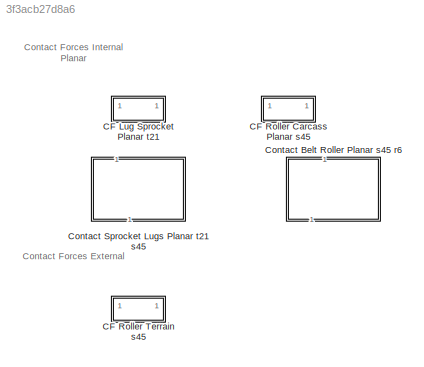
MODEL slx_3f3acb27d8a6
KIND library
CONFIG SolverName = VariableStepAuto
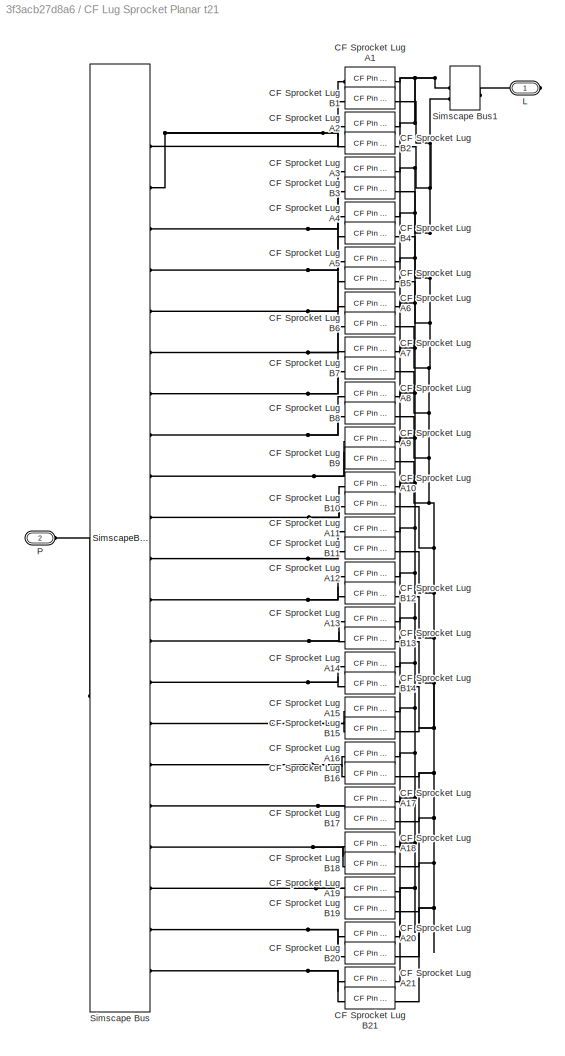
BLOCK [SubSystem] CF Lug Sprocket Planar t21
BLOCK [Reference] CF Lug Sprocket Planar t21/CF Sprocket Lug A1  REF=sm_trackV_lib_belt_contact/CF Pin Lug Planar
  NameLocation = left
  SourceBlock = sm_trackV_lib_belt_contact/CF Pin Lug Planar
  SourceType = Contact Force between Lug and Sprocket Pin (Planar)
BLOCK [Reference] CF Lug Sprocket Planar t21/CF Sprocket Lug A10  REF=sm_trackV_lib_belt_contact/CF Pin Lug Planar
  NameLocation = left
  SourceBlock = sm_trackV_lib_belt_contact/CF Pin Lug Planar
  SourceType = Contact Force between Lug and Sprocket Pin (Planar)
BLOCK [Reference] CF Lug Sprocket Planar t21/CF Sprocket Lug A11  REF=sm_trackV_lib_belt_contact/CF Pin Lug Planar
  NameLocation = left
  SourceBlock = sm_trackV_lib_belt_contact/CF Pin Lug Planar
  SourceType = Contact Force between Lug and Sprocket Pin (Planar)
BLOCK [Reference] CF Lug Sprocket Planar t21/CF Sprocket Lug A12  REF=sm_trackV_lib_belt_contact/CF Pin Lug Planar
  NameLocation = left
  SourceBlock = sm_trackV_lib_belt_contact/CF Pin Lug Planar
  SourceType = Contact Force between Lug and Sprocket Pin (Planar)
BLOCK [Reference] CF Lug Sprocket Planar t21/CF Sprocket Lug A13  REF=sm_trackV_lib_belt_contact/CF Pin Lug Planar
  NameLocation = left
  SourceBlock = sm_trackV_lib_belt_contact/CF Pin Lug Planar
  SourceType = Contact Force between Lug and Sprocket Pin (Planar)
BLOCK [Reference] CF Lug Sprocket Planar t21/CF Sprocket Lug A14  REF=sm_trackV_lib_belt_contact/CF Pin Lug Planar
  NameLocation = left
  SourceBlock = sm_trackV_lib_belt_contact/CF Pin Lug Planar
  SourceType = Contact Force between Lug and Sprocket Pin (Planar)
BLOCK [Reference] CF Lug Sprocket Planar t21/CF Sprocket Lug A15  REF=sm_trackV_lib_belt_contact/CF Pin Lug Planar
  NameLocation = left
  SourceBlock = sm_trackV_lib_belt_contact/CF Pin Lug Planar
  SourceType = Contact Force between Lug and Sprocket Pin (Planar)
BLOCK [Reference] CF Lug Sprocket Planar t21/CF Sprocket Lug A16  REF=sm_trackV_lib_belt_contact/CF Pin Lug Planar
  NameLocation = left
  SourceBlock = sm_trackV_lib_belt_contact/CF Pin Lug Planar
  SourceType = Contact Force between Lug and Sprocket Pin (Planar)
BLOCK [Reference] CF Lug Sprocket Planar t21/CF Sprocket Lug A17  REF=sm_trackV_lib_belt_contact/CF Pin Lug Planar
  NameLocation = left
  SourceBlock = sm_trackV_lib_belt_contact/CF Pin Lug Planar
  SourceType = Contact Force between Lug and Sprocket Pin (Planar)
BLOCK [Reference] CF Lug Sprocket Planar t21/CF Sprocket Lug A18  REF=sm_trackV_lib_belt_contact/CF Pin Lug Planar
  NameLocation = left
  SourceBlock = sm_trackV_lib_belt_contact/CF Pin Lug Planar
  SourceType = Contact Force between Lug and Sprocket Pin (Planar)
BLOCK [Reference] CF Lug Sprocket Planar t21/CF Sprocket Lug A19  REF=sm_trackV_lib_belt_contact/CF Pin Lug Planar
  NameLocation = left
  SourceBlock = sm_trackV_lib_belt_contact/CF Pin Lug Planar
  SourceType = Contact Force between Lug and Sprocket Pin (Planar)
BLOCK [Reference] CF Lug Sprocket Planar t21/CF Sprocket Lug A2  REF=sm_trackV_lib_belt_contact/CF Pin Lug Planar
  NameLocation = left
  SourceBlock = sm_trackV_lib_belt_contact/CF Pin Lug Planar
  SourceType = Contact Force between Lug and Sprocket Pin (Planar)
BLOCK [Reference] CF Lug Sprocket Planar t21/CF Sprocket Lug A20  REF=sm_trackV_lib_belt_contact/CF Pin Lug Planar
  NameLocation = left
  SourceBlock = sm_trackV_lib_belt_contact/CF Pin Lug Planar
  SourceType = Contact Force between Lug and Sprocket Pin (Planar)
BLOCK [Reference] CF Lug Sprocket Planar t21/CF Sprocket Lug A21  REF=sm_trackV_lib_belt_contact/CF Pin Lug Planar
  NameLocation = left
  SourceBlock = sm_trackV_lib_belt_contact/CF Pin Lug Planar
  SourceType = Contact Force between Lug and Sprocket Pin (Planar)
BLOCK [Reference] CF Lug Sprocket Planar t21/CF Sprocket Lug A3  REF=sm_trackV_lib_belt_contact/CF Pin Lug Planar
  NameLocation = left
  SourceBlock = sm_trackV_lib_belt_contact/CF Pin Lug Planar
  SourceType = Contact Force between Lug and Sprocket Pin (Planar)
BLOCK [Reference] CF Lug Sprocket Planar t21/CF Sprocket Lug A4  REF=sm_trackV_lib_belt_contact/CF Pin Lug Planar
  NameLocation = left
  SourceBlock = sm_trackV_lib_belt_contact/CF Pin Lug Planar
  SourceType = Contact Force between Lug and Sprocket Pin (Planar)
BLOCK [Reference] CF Lug Sprocket Planar t21/CF Sprocket Lug A5  REF=sm_trackV_lib_belt_contact/CF Pin Lug Planar
  NameLocation = left
  SourceBlock = sm_trackV_lib_belt_contact/CF Pin Lug Planar
  SourceType = Contact Force between Lug and Sprocket Pin (Planar)
BLOCK [Reference] CF Lug Sprocket Planar t21/CF Sprocket Lug A6  REF=sm_trackV_lib_belt_contact/CF Pin Lug Planar
  NameLocation = left
  SourceBlock = sm_trackV_lib_belt_contact/CF Pin Lug Planar
  SourceType = Contact Force between Lug and Sprocket Pin (Planar)
BLOCK [Reference] CF Lug Sprocket Planar t21/CF Sprocket Lug A7  REF=sm_trackV_lib_belt_contact/CF Pin Lug Planar
  NameLocation = left
  SourceBlock = sm_trackV_lib_belt_contact/CF Pin Lug Planar
  SourceType = Contact Force between Lug and Sprocket Pin (Planar)
BLOCK [Reference] CF Lug Sprocket Planar t21/CF Sprocket Lug A8  REF=sm_trackV_lib_belt_contact/CF Pin Lug Planar
  NameLocation = left
  SourceBlock = sm_trackV_lib_belt_contact/CF Pin Lug Planar
  SourceType = Contact Force between Lug and Sprocket Pin (Planar)
BLOCK [Reference] CF Lug Sprocket Planar t21/CF Sprocket Lug A9  REF=sm_trackV_lib_belt_contact/CF Pin Lug Planar
  NameLocation = left
  SourceBlock = sm_trackV_lib_belt_contact/CF Pin Lug Planar
  SourceType = Contact Force between Lug and Sprocket Pin (Planar)
BLOCK [Reference] CF Lug Sprocket Planar t21/CF Sprocket Lug B1  REF=sm_trackV_lib_belt_contact/CF Pin Lug Planar
  NameLocation = left
  SourceBlock = sm_trackV_lib_belt_contact/CF Pin Lug Planar
  SourceType = Contact Force between Lug and Sprocket Pin (Planar)
BLOCK [Reference] CF Lug Sprocket Planar t21/CF Sprocket Lug B10  REF=sm_trackV_lib_belt_contact/CF Pin Lug Planar
  NameLocation = left
  SourceBlock = sm_trackV_lib_belt_contact/CF Pin Lug Planar
  SourceType = Contact Force between Lug and Sprocket Pin (Planar)
BLOCK [Reference] CF Lug Sprocket Planar t21/CF Sprocket Lug B11  REF=sm_trackV_lib_belt_contact/CF Pin Lug Planar
  NameLocation = left
  SourceBlock = sm_trackV_lib_belt_contact/CF Pin Lug Planar
  SourceType = Contact Force between Lug and Sprocket Pin (Planar)
BLOCK [Reference] CF Lug Sprocket Planar t21/CF Sprocket Lug B12  REF=sm_trackV_lib_belt_contact/CF Pin Lug Planar
  NameLocation = left
  SourceBlock = sm_trackV_lib_belt_contact/CF Pin Lug Planar
  SourceType = Contact Force between Lug and Sprocket Pin (Planar)
BLOCK [Reference] CF Lug Sprocket Planar t21/CF Sprocket Lug B13  REF=sm_trackV_lib_belt_contact/CF Pin Lug Planar
  NameLocation = left
  SourceBlock = sm_trackV_lib_belt_contact/CF Pin Lug Planar
  SourceType = Contact Force between Lug and Sprocket Pin (Planar)
BLOCK [Reference] CF Lug Sprocket Planar t21/CF Sprocket Lug B14  REF=sm_trackV_lib_belt_contact/CF Pin Lug Planar
  NameLocation = left
  SourceBlock = sm_trackV_lib_belt_contact/CF Pin Lug Planar
  SourceType = Contact Force between Lug and Sprocket Pin (Planar)
BLOCK [Reference] CF Lug Sprocket Planar t21/CF Sprocket Lug B15  REF=sm_trackV_lib_belt_contact/CF Pin Lug Planar
  NameLocation = left
  SourceBlock = sm_trackV_lib_belt_contact/CF Pin Lug Planar
  SourceType = Contact Force between Lug and Sprocket Pin (Planar)
BLOCK [Reference] CF Lug Sprocket Planar t21/CF Sprocket Lug B16  REF=sm_trackV_lib_belt_contact/CF Pin Lug Planar
  NameLocation = left
  SourceBlock = sm_trackV_lib_belt_contact/CF Pin Lug Planar
  SourceType = Contact Force between Lug and Sprocket Pin (Planar)
BLOCK [Reference] CF Lug Sprocket Planar t21/CF Sprocket Lug B17  REF=sm_trackV_lib_belt_contact/CF Pin Lug Planar
  NameLocation = left
  SourceBlock = sm_trackV_lib_belt_contact/CF Pin Lug Planar
  SourceType = Contact Force between Lug and Sprocket Pin (Planar)
BLOCK [Reference] CF Lug Sprocket Planar t21/CF Sprocket Lug B18  REF=sm_trackV_lib_belt_contact/CF Pin Lug Planar
  NameLocation = left
  SourceBlock = sm_trackV_lib_belt_contact/CF Pin Lug Planar
  SourceType = Contact Force between Lug and Sprocket Pin (Planar)
BLOCK [Reference] CF Lug Sprocket Planar t21/CF Sprocket Lug B19  REF=sm_trackV_lib_belt_contact/CF Pin Lug Planar
  NameLocation = left
  SourceBlock = sm_trackV_lib_belt_contact/CF Pin Lug Planar
  SourceType = Contact Force between Lug and Sprocket Pin (Planar)
BLOCK [Reference] CF Lug Sprocket Planar t21/CF Sprocket Lug B2  REF=sm_trackV_lib_belt_contact/CF Pin Lug Planar
  NameLocation = left
  SourceBlock = sm_trackV_lib_belt_contact/CF Pin Lug Planar
  SourceType = Contact Force between Lug and Sprocket Pin (Planar)
BLOCK [Reference] CF Lug Sprocket Planar t21/CF Sprocket Lug B20  REF=sm_trackV_lib_belt_contact/CF Pin Lug Planar
  NameLocation = left
  SourceBlock = sm_trackV_lib_belt_contact/CF Pin Lug Planar
  SourceType = Contact Force between Lug and Sprocket Pin (Planar)
BLOCK [Reference] CF Lug Sprocket Planar t21/CF Sprocket Lug B21  REF=sm_trackV_lib_belt_contact/CF Pin Lug Planar
  NameLocation = left
  SourceBlock = sm_trackV_lib_belt_contact/CF Pin Lug Planar
  SourceType = Contact Force between Lug and Sprocket Pin (Planar)
BLOCK [Reference] CF Lug Sprocket Planar t21/CF Sprocket Lug B3  REF=sm_trackV_lib_belt_contact/CF Pin Lug Planar
  NameLocation = left
  SourceBlock = sm_trackV_lib_belt_contact/CF Pin Lug Planar
  SourceType = Contact Force between Lug and Sprocket Pin (Planar)
BLOCK [Reference] CF Lug Sprocket Planar t21/CF Sprocket Lug B4  REF=sm_trackV_lib_belt_contact/CF Pin Lug Planar
  NameLocation = left
  SourceBlock = sm_trackV_lib_belt_contact/CF Pin Lug Planar
  SourceType = Contact Force between Lug and Sprocket Pin (Planar)
BLOCK [Reference] CF Lug Sprocket Planar t21/CF Sprocket Lug B5  REF=sm_trackV_lib_belt_contact/CF Pin Lug Planar
  NameLocation = left
  SourceBlock = sm_trackV_lib_belt_contact/CF Pin Lug Planar
  SourceType = Contact Force between Lug and Sprocket Pin (Planar)
BLOCK [Reference] CF Lug Sprocket Planar t21/CF Sprocket Lug B6  REF=sm_trackV_lib_belt_contact/CF Pin Lug Planar
  NameLocation = left
  SourceBlock = sm_trackV_lib_belt_contact/CF Pin Lug Planar
  SourceType = Contact Force between Lug and Sprocket Pin (Planar)
BLOCK [Reference] CF Lug Sprocket Planar t21/CF Sprocket Lug B7  REF=sm_trackV_lib_belt_contact/CF Pin Lug Planar
  NameLocation = left
  SourceBlock = sm_trackV_lib_belt_contact/CF Pin Lug Planar
  SourceType = Contact Force between Lug and Sprocket Pin (Planar)
BLOCK [Reference] CF Lug Sprocket Planar t21/CF Sprocket Lug B8  REF=sm_trackV_lib_belt_contact/CF Pin Lug Planar
  NameLocation = left
  SourceBlock = sm_trackV_lib_belt_contact/CF Pin Lug Planar
  SourceType = Contact Force between Lug and Sprocket Pin (Planar)
BLOCK [Reference] CF Lug Sprocket Planar t21/CF Sprocket Lug B9  REF=sm_trackV_lib_belt_contact/CF Pin Lug Planar
  NameLocation = left
  SourceBlock = sm_trackV_lib_belt_contact/CF Pin Lug Planar
  SourceType = Contact Force between Lug and Sprocket Pin (Planar)
BLOCK [PMIOPort] CF Lug Sprocket Planar t21/L
  Side = Right
BLOCK [PMIOPort] CF Lug Sprocket Planar t21/P
  Port = 2
  Side = Left
BLOCK [SimscapeBus] CF Lug Sprocket Planar t21/Simscape Bus
  HierarchyStrings = P00;P01;P02;P03;P04;P05;P06;P07;P08;P09;P10;P11;P12;P13;P14;P15;P16;P17;P18;P19;P20
BLOCK [SimscapeBus] CF Lug Sprocket Planar t21/Simscape Bus1
  ConnectionType = Bus: CBO_TreadLug
  HierarchyStrings = A;B
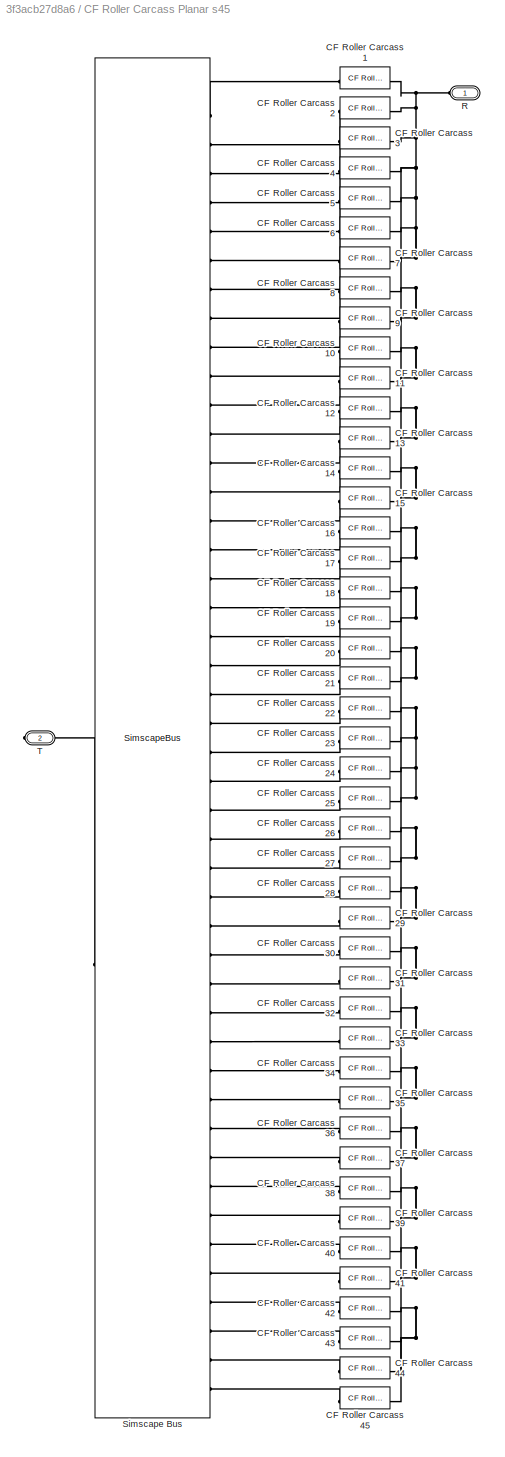
BLOCK [SubSystem] CF Roller Carcass Planar s45
BLOCK [Reference] CF Roller Carcass Planar s45/CF Roller Carcass 1  REF=sm_trackV_lib_belt_contact/CF Roller Carcass Planar
  NameLocation = left
  SourceBlock = sm_trackV_lib_belt_contact/CF Roller Carcass Planar
  SourceType = Contact Force between Belt and Roller (Planar)
BLOCK [Reference] CF Roller Carcass Planar s45/CF Roller Carcass 10  REF=sm_trackV_lib_belt_contact/CF Roller Carcass Planar
  NameLocation = left
  SourceBlock = sm_trackV_lib_belt_contact/CF Roller Carcass Planar
  SourceType = Contact Force between Belt and Roller (Planar)
BLOCK [Reference] CF Roller Carcass Planar s45/CF Roller Carcass 11  REF=sm_trackV_lib_belt_contact/CF Roller Carcass Planar
  NameLocation = left
  SourceBlock = sm_trackV_lib_belt_contact/CF Roller Carcass Planar
  SourceType = Contact Force between Belt and Roller (Planar)
BLOCK [Reference] CF Roller Carcass Planar s45/CF Roller Carcass 12  REF=sm_trackV_lib_belt_contact/CF Roller Carcass Planar
  NameLocation = left
  SourceBlock = sm_trackV_lib_belt_contact/CF Roller Carcass Planar
  SourceType = Contact Force between Belt and Roller (Planar)
BLOCK [Reference] CF Roller Carcass Planar s45/CF Roller Carcass 13  REF=sm_trackV_lib_belt_contact/CF Roller Carcass Planar
  NameLocation = left
  SourceBlock = sm_trackV_lib_belt_contact/CF Roller Carcass Planar
  SourceType = Contact Force between Belt and Roller (Planar)
BLOCK [Reference] CF Roller Carcass Planar s45/CF Roller Carcass 14  REF=sm_trackV_lib_belt_contact/CF Roller Carcass Planar
  NameLocation = left
  SourceBlock = sm_trackV_lib_belt_contact/CF Roller Carcass Planar
  SourceType = Contact Force between Belt and Roller (Planar)
BLOCK [Reference] CF Roller Carcass Planar s45/CF Roller Carcass 15  REF=sm_trackV_lib_belt_contact/CF Roller Carcass Planar
  NameLocation = left
  SourceBlock = sm_trackV_lib_belt_contact/CF Roller Carcass Planar
  SourceType = Contact Force between Belt and Roller (Planar)
BLOCK [Reference] CF Roller Carcass Planar s45/CF Roller Carcass 16  REF=sm_trackV_lib_belt_contact/CF Roller Carcass Planar
  NameLocation = left
  SourceBlock = sm_trackV_lib_belt_contact/CF Roller Carcass Planar
  SourceType = Contact Force between Belt and Roller (Planar)
BLOCK [Reference] CF Roller Carcass Planar s45/CF Roller Carcass 17  REF=sm_trackV_lib_belt_contact/CF Roller Carcass Planar
  NameLocation = left
  SourceBlock = sm_trackV_lib_belt_contact/CF Roller Carcass Planar
  SourceType = Contact Force between Belt and Roller (Planar)
BLOCK [Reference] CF Roller Carcass Planar s45/CF Roller Carcass 18  REF=sm_trackV_lib_belt_contact/CF Roller Carcass Planar
  NameLocation = left
  SourceBlock = sm_trackV_lib_belt_contact/CF Roller Carcass Planar
  SourceType = Contact Force between Belt and Roller (Planar)
BLOCK [Reference] CF Roller Carcass Planar s45/CF Roller Carcass 19  REF=sm_trackV_lib_belt_contact/CF Roller Carcass Planar
  NameLocation = left
  SourceBlock = sm_trackV_lib_belt_contact/CF Roller Carcass Planar
  SourceType = Contact Force between Belt and Roller (Planar)
BLOCK [Reference] CF Roller Carcass Planar s45/CF Roller Carcass 2  REF=sm_trackV_lib_belt_contact/CF Roller Carcass Planar
  NameLocation = left
  SourceBlock = sm_trackV_lib_belt_contact/CF Roller Carcass Planar
  SourceType = Contact Force between Belt and Roller (Planar)
BLOCK [Reference] CF Roller Carcass Planar s45/CF Roller Carcass 20  REF=sm_trackV_lib_belt_contact/CF Roller Carcass Planar
  NameLocation = left
  SourceBlock = sm_trackV_lib_belt_contact/CF Roller Carcass Planar
  SourceType = Contact Force between Belt and Roller (Planar)
BLOCK [Reference] CF Roller Carcass Planar s45/CF Roller Carcass 21  REF=sm_trackV_lib_belt_contact/CF Roller Carcass Planar
  NameLocation = left
  SourceBlock = sm_trackV_lib_belt_contact/CF Roller Carcass Planar
  SourceType = Contact Force between Belt and Roller (Planar)
BLOCK [Reference] CF Roller Carcass Planar s45/CF Roller Carcass 22  REF=sm_trackV_lib_belt_contact/CF Roller Carcass Planar
  NameLocation = left
  SourceBlock = sm_trackV_lib_belt_contact/CF Roller Carcass Planar
  SourceType = Contact Force between Belt and Roller (Planar)
BLOCK [Reference] CF Roller Carcass Planar s45/CF Roller Carcass 23  REF=sm_trackV_lib_belt_contact/CF Roller Carcass Planar
  NameLocation = left
  SourceBlock = sm_trackV_lib_belt_contact/CF Roller Carcass Planar
  SourceType = Contact Force between Belt and Roller (Planar)
BLOCK [Reference] CF Roller Carcass Planar s45/CF Roller Carcass 24  REF=sm_trackV_lib_belt_contact/CF Roller Carcass Planar
  NameLocation = left
  SourceBlock = sm_trackV_lib_belt_contact/CF Roller Carcass Planar
  SourceType = Contact Force between Belt and Roller (Planar)
BLOCK [Reference] CF Roller Carcass Planar s45/CF Roller Carcass 25  REF=sm_trackV_lib_belt_contact/CF Roller Carcass Planar
  NameLocation = left
  SourceBlock = sm_trackV_lib_belt_contact/CF Roller Carcass Planar
  SourceType = Contact Force between Belt and Roller (Planar)
BLOCK [Reference] CF Roller Carcass Planar s45/CF Roller Carcass 26  REF=sm_trackV_lib_belt_contact/CF Roller Carcass Planar
  NameLocation = left
  SourceBlock = sm_trackV_lib_belt_contact/CF Roller Carcass Planar
  SourceType = Contact Force between Belt and Roller (Planar)
BLOCK [Reference] CF Roller Carcass Planar s45/CF Roller Carcass 27  REF=sm_trackV_lib_belt_contact/CF Roller Carcass Planar
  NameLocation = left
  SourceBlock = sm_trackV_lib_belt_contact/CF Roller Carcass Planar
  SourceType = Contact Force between Belt and Roller (Planar)
BLOCK [Reference] CF Roller Carcass Planar s45/CF Roller Carcass 28  REF=sm_trackV_lib_belt_contact/CF Roller Carcass Planar
  NameLocation = left
  SourceBlock = sm_trackV_lib_belt_contact/CF Roller Carcass Planar
  SourceType = Contact Force between Belt and Roller (Planar)
BLOCK [Reference] CF Roller Carcass Planar s45/CF Roller Carcass 29  REF=sm_trackV_lib_belt_contact/CF Roller Carcass Planar
  NameLocation = left
  SourceBlock = sm_trackV_lib_belt_contact/CF Roller Carcass Planar
  SourceType = Contact Force between Belt and Roller (Planar)
BLOCK [Reference] CF Roller Carcass Planar s45/CF Roller Carcass 3  REF=sm_trackV_lib_belt_contact/CF Roller Carcass Planar
  NameLocation = left
  SourceBlock = sm_trackV_lib_belt_contact/CF Roller Carcass Planar
  SourceType = Contact Force between Belt and Roller (Planar)
BLOCK [Reference] CF Roller Carcass Planar s45/CF Roller Carcass 30  REF=sm_trackV_lib_belt_contact/CF Roller Carcass Planar
  NameLocation = left
  SourceBlock = sm_trackV_lib_belt_contact/CF Roller Carcass Planar
  SourceType = Contact Force between Belt and Roller (Planar)
BLOCK [Reference] CF Roller Carcass Planar s45/CF Roller Carcass 31  REF=sm_trackV_lib_belt_contact/CF Roller Carcass Planar
  NameLocation = left
  SourceBlock = sm_trackV_lib_belt_contact/CF Roller Carcass Planar
  SourceType = Contact Force between Belt and Roller (Planar)
BLOCK [Reference] CF Roller Carcass Planar s45/CF Roller Carcass 32  REF=sm_trackV_lib_belt_contact/CF Roller Carcass Planar
  NameLocation = left
  SourceBlock = sm_trackV_lib_belt_contact/CF Roller Carcass Planar
  SourceType = Contact Force between Belt and Roller (Planar)
BLOCK [Reference] CF Roller Carcass Planar s45/CF Roller Carcass 33  REF=sm_trackV_lib_belt_contact/CF Roller Carcass Planar
  NameLocation = left
  SourceBlock = sm_trackV_lib_belt_contact/CF Roller Carcass Planar
  SourceType = Contact Force between Belt and Roller (Planar)
BLOCK [Reference] CF Roller Carcass Planar s45/CF Roller Carcass 34  REF=sm_trackV_lib_belt_contact/CF Roller Carcass Planar
  NameLocation = left
  SourceBlock = sm_trackV_lib_belt_contact/CF Roller Carcass Planar
  SourceType = Contact Force between Belt and Roller (Planar)
BLOCK [Reference] CF Roller Carcass Planar s45/CF Roller Carcass 35  REF=sm_trackV_lib_belt_contact/CF Roller Carcass Planar
  NameLocation = left
  SourceBlock = sm_trackV_lib_belt_contact/CF Roller Carcass Planar
  SourceType = Contact Force between Belt and Roller (Planar)
BLOCK [Reference] CF Roller Carcass Planar s45/CF Roller Carcass 36  REF=sm_trackV_lib_belt_contact/CF Roller Carcass Planar
  NameLocation = left
  SourceBlock = sm_trackV_lib_belt_contact/CF Roller Carcass Planar
  SourceType = Contact Force between Belt and Roller (Planar)
BLOCK [Reference] CF Roller Carcass Planar s45/CF Roller Carcass 37  REF=sm_trackV_lib_belt_contact/CF Roller Carcass Planar
  NameLocation = left
  SourceBlock = sm_trackV_lib_belt_contact/CF Roller Carcass Planar
  SourceType = Contact Force between Belt and Roller (Planar)
BLOCK [Reference] CF Roller Carcass Planar s45/CF Roller Carcass 38  REF=sm_trackV_lib_belt_contact/CF Roller Carcass Planar
  NameLocation = left
  SourceBlock = sm_trackV_lib_belt_contact/CF Roller Carcass Planar
  SourceType = Contact Force between Belt and Roller (Planar)
BLOCK [Reference] CF Roller Carcass Planar s45/CF Roller Carcass 39  REF=sm_trackV_lib_belt_contact/CF Roller Carcass Planar
  NameLocation = left
  SourceBlock = sm_trackV_lib_belt_contact/CF Roller Carcass Planar
  SourceType = Contact Force between Belt and Roller (Planar)
BLOCK [Reference] CF Roller Carcass Planar s45/CF Roller Carcass 4  REF=sm_trackV_lib_belt_contact/CF Roller Carcass Planar
  NameLocation = left
  SourceBlock = sm_trackV_lib_belt_contact/CF Roller Carcass Planar
  SourceType = Contact Force between Belt and Roller (Planar)
BLOCK [Reference] CF Roller Carcass Planar s45/CF Roller Carcass 40  REF=sm_trackV_lib_belt_contact/CF Roller Carcass Planar
  NameLocation = left
  SourceBlock = sm_trackV_lib_belt_contact/CF Roller Carcass Planar
  SourceType = Contact Force between Belt and Roller (Planar)
BLOCK [Reference] CF Roller Carcass Planar s45/CF Roller Carcass 41  REF=sm_trackV_lib_belt_contact/CF Roller Carcass Planar
  NameLocation = left
  SourceBlock = sm_trackV_lib_belt_contact/CF Roller Carcass Planar
  SourceType = Contact Force between Belt and Roller (Planar)
BLOCK [Reference] CF Roller Carcass Planar s45/CF Roller Carcass 42  REF=sm_trackV_lib_belt_contact/CF Roller Carcass Planar
  NameLocation = left
  SourceBlock = sm_trackV_lib_belt_contact/CF Roller Carcass Planar
  SourceType = Contact Force between Belt and Roller (Planar)
BLOCK [Reference] CF Roller Carcass Planar s45/CF Roller Carcass 43  REF=sm_trackV_lib_belt_contact/CF Roller Carcass Planar
  NameLocation = left
  SourceBlock = sm_trackV_lib_belt_contact/CF Roller Carcass Planar
  SourceType = Contact Force between Belt and Roller (Planar)
BLOCK [Reference] CF Roller Carcass Planar s45/CF Roller Carcass 44  REF=sm_trackV_lib_belt_contact/CF Roller Carcass Planar
  NameLocation = left
  SourceBlock = sm_trackV_lib_belt_contact/CF Roller Carcass Planar
  SourceType = Contact Force between Belt and Roller (Planar)
BLOCK [Reference] CF Roller Carcass Planar s45/CF Roller Carcass 45  REF=sm_trackV_lib_belt_contact/CF Roller Carcass Planar
  NameLocation = left
  SourceBlock = sm_trackV_lib_belt_contact/CF Roller Carcass Planar
  SourceType = Contact Force between Belt and Roller (Planar)
BLOCK [Reference] CF Roller Carcass Planar s45/CF Roller Carcass 5  REF=sm_trackV_lib_belt_contact/CF Roller Carcass Planar
  NameLocation = left
  SourceBlock = sm_trackV_lib_belt_contact/CF Roller Carcass Planar
  SourceType = Contact Force between Belt and Roller (Planar)
BLOCK [Reference] CF Roller Carcass Planar s45/CF Roller Carcass 6  REF=sm_trackV_lib_belt_contact/CF Roller Carcass Planar
  NameLocation = left
  SourceBlock = sm_trackV_lib_belt_contact/CF Roller Carcass Planar
  SourceType = Contact Force between Belt and Roller (Planar)
BLOCK [Reference] CF Roller Carcass Planar s45/CF Roller Carcass 7  REF=sm_trackV_lib_belt_contact/CF Roller Carcass Planar
  NameLocation = left
  SourceBlock = sm_trackV_lib_belt_contact/CF Roller Carcass Planar
  SourceType = Contact Force between Belt and Roller (Planar)
BLOCK [Reference] CF Roller Carcass Planar s45/CF Roller Carcass 8  REF=sm_trackV_lib_belt_contact/CF Roller Carcass Planar
  NameLocation = left
  SourceBlock = sm_trackV_lib_belt_contact/CF Roller Carcass Planar
  SourceType = Contact Force between Belt and Roller (Planar)
BLOCK [Reference] CF Roller Carcass Planar s45/CF Roller Carcass 9  REF=sm_trackV_lib_belt_contact/CF Roller Carcass Planar
  NameLocation = left
  SourceBlock = sm_trackV_lib_belt_contact/CF Roller Carcass Planar
  SourceType = Contact Force between Belt and Roller (Planar)
BLOCK [PMIOPort] CF Roller Carcass Planar s45/R
  NameLocation = top
  Side = Left
BLOCK [SimscapeBus] CF Roller Carcass Planar s45/Simscape Bus
  ConnectionType = Bus: CBO_TrRoll
  HierarchyStrings = T01;T02;T03;T04;T05;T06;T07;T08;T09;T10;T11;T12;T13;T14;T15;T16;T17;T18;T19;T20;T21;T22;T23;T24;T25;T26;T27;T28;T29;T30;T31;T32;T33;T34;T35;T36;T37;T38;T39;T40;T41;T42;T43;T44;T45
BLOCK [PMIOPort] CF Roller Carcass Planar s45/T
  NameLocation = top
  Port = 2
  Side = Right
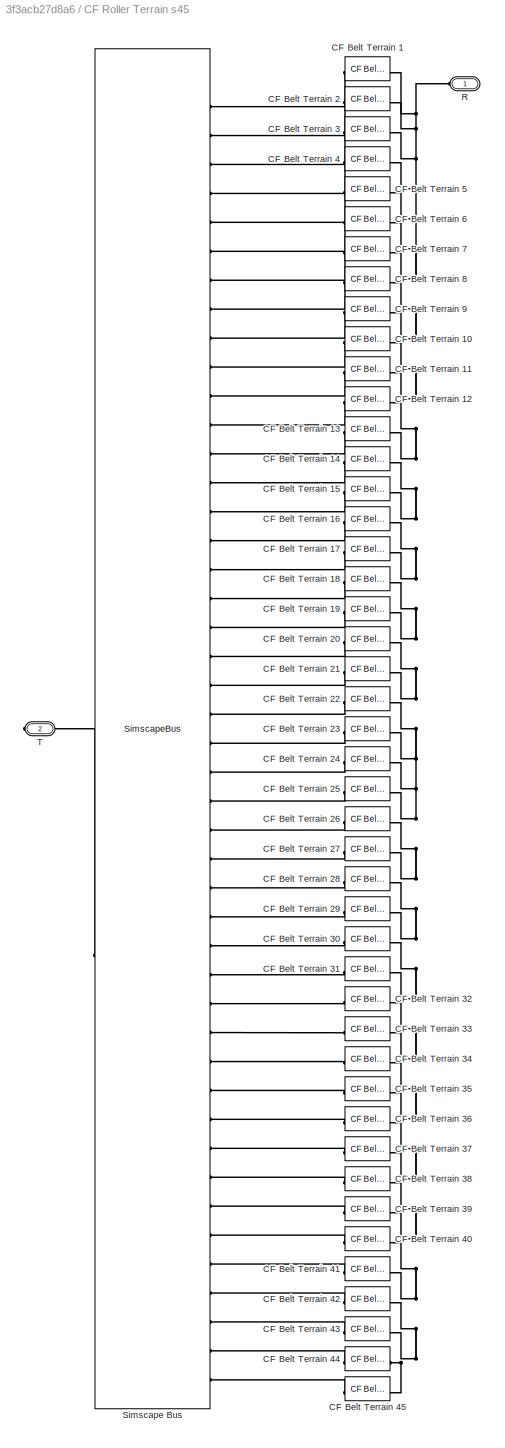
BLOCK [SubSystem] CF Roller Terrain s45
BLOCK [Reference] CF Roller Terrain s45/CF Belt Terrain 1  REF=sm_trackV_lib_belt_contact/CF Belt Terrain
  NameLocation = left
  SourceBlock = sm_trackV_lib_belt_contact/CF Belt Terrain
  SourceType = Contact Force, Belt Segment to Terrain
BLOCK [Reference] CF Roller Terrain s45/CF Belt Terrain 10  REF=sm_trackV_lib_belt_contact/CF Belt Terrain
  NameLocation = left
  SourceBlock = sm_trackV_lib_belt_contact/CF Belt Terrain
  SourceType = Contact Force, Belt Segment to Terrain
BLOCK [Reference] CF Roller Terrain s45/CF Belt Terrain 11  REF=sm_trackV_lib_belt_contact/CF Belt Terrain
  NameLocation = left
  SourceBlock = sm_trackV_lib_belt_contact/CF Belt Terrain
  SourceType = Contact Force, Belt Segment to Terrain
BLOCK [Reference] CF Roller Terrain s45/CF Belt Terrain 12  REF=sm_trackV_lib_belt_contact/CF Belt Terrain
  NameLocation = left
  SourceBlock = sm_trackV_lib_belt_contact/CF Belt Terrain
  SourceType = Contact Force, Belt Segment to Terrain
BLOCK [Reference] CF Roller Terrain s45/CF Belt Terrain 13  REF=sm_trackV_lib_belt_contact/CF Belt Terrain
  NameLocation = left
  SourceBlock = sm_trackV_lib_belt_contact/CF Belt Terrain
  SourceType = Contact Force, Belt Segment to Terrain
BLOCK [Reference] CF Roller Terrain s45/CF Belt Terrain 14  REF=sm_trackV_lib_belt_contact/CF Belt Terrain
  NameLocation = left
  SourceBlock = sm_trackV_lib_belt_contact/CF Belt Terrain
  SourceType = Contact Force, Belt Segment to Terrain
BLOCK [Reference] CF Roller Terrain s45/CF Belt Terrain 15  REF=sm_trackV_lib_belt_contact/CF Belt Terrain
  NameLocation = left
  SourceBlock = sm_trackV_lib_belt_contact/CF Belt Terrain
  SourceType = Contact Force, Belt Segment to Terrain
BLOCK [Reference] CF Roller Terrain s45/CF Belt Terrain 16  REF=sm_trackV_lib_belt_contact/CF Belt Terrain
  NameLocation = left
  SourceBlock = sm_trackV_lib_belt_contact/CF Belt Terrain
  SourceType = Contact Force, Belt Segment to Terrain
BLOCK [Reference] CF Roller Terrain s45/CF Belt Terrain 17  REF=sm_trackV_lib_belt_contact/CF Belt Terrain
  NameLocation = left
  SourceBlock = sm_trackV_lib_belt_contact/CF Belt Terrain
  SourceType = Contact Force, Belt Segment to Terrain
BLOCK [Reference] CF Roller Terrain s45/CF Belt Terrain 18  REF=sm_trackV_lib_belt_contact/CF Belt Terrain
  NameLocation = left
  SourceBlock = sm_trackV_lib_belt_contact/CF Belt Terrain
  SourceType = Contact Force, Belt Segment to Terrain
BLOCK [Reference] CF Roller Terrain s45/CF Belt Terrain 19  REF=sm_trackV_lib_belt_contact/CF Belt Terrain
  NameLocation = left
  SourceBlock = sm_trackV_lib_belt_contact/CF Belt Terrain
  SourceType = Contact Force, Belt Segment to Terrain
BLOCK [Reference] CF Roller Terrain s45/CF Belt Terrain 2  REF=sm_trackV_lib_belt_contact/CF Belt Terrain
  NameLocation = left
  SourceBlock = sm_trackV_lib_belt_contact/CF Belt Terrain
  SourceType = Contact Force, Belt Segment to Terrain
BLOCK [Reference] CF Roller Terrain s45/CF Belt Terrain 20  REF=sm_trackV_lib_belt_contact/CF Belt Terrain
  NameLocation = left
  SourceBlock = sm_trackV_lib_belt_contact/CF Belt Terrain
  SourceType = Contact Force, Belt Segment to Terrain
BLOCK [Reference] CF Roller Terrain s45/CF Belt Terrain 21  REF=sm_trackV_lib_belt_contact/CF Belt Terrain
  NameLocation = left
  SourceBlock = sm_trackV_lib_belt_contact/CF Belt Terrain
  SourceType = Contact Force, Belt Segment to Terrain
BLOCK [Reference] CF Roller Terrain s45/CF Belt Terrain 22  REF=sm_trackV_lib_belt_contact/CF Belt Terrain
  NameLocation = left
  SourceBlock = sm_trackV_lib_belt_contact/CF Belt Terrain
  SourceType = Contact Force, Belt Segment to Terrain
BLOCK [Reference] CF Roller Terrain s45/CF Belt Terrain 23  REF=sm_trackV_lib_belt_contact/CF Belt Terrain
  NameLocation = left
  SourceBlock = sm_trackV_lib_belt_contact/CF Belt Terrain
  SourceType = Contact Force, Belt Segment to Terrain
BLOCK [Reference] CF Roller Terrain s45/CF Belt Terrain 24  REF=sm_trackV_lib_belt_contact/CF Belt Terrain
  NameLocation = left
  SourceBlock = sm_trackV_lib_belt_contact/CF Belt Terrain
  SourceType = Contact Force, Belt Segment to Terrain
BLOCK [Reference] CF Roller Terrain s45/CF Belt Terrain 25  REF=sm_trackV_lib_belt_contact/CF Belt Terrain
  NameLocation = left
  SourceBlock = sm_trackV_lib_belt_contact/CF Belt Terrain
  SourceType = Contact Force, Belt Segment to Terrain
BLOCK [Reference] CF Roller Terrain s45/CF Belt Terrain 26  REF=sm_trackV_lib_belt_contact/CF Belt Terrain
  NameLocation = left
  SourceBlock = sm_trackV_lib_belt_contact/CF Belt Terrain
  SourceType = Contact Force, Belt Segment to Terrain
BLOCK [Reference] CF Roller Terrain s45/CF Belt Terrain 27  REF=sm_trackV_lib_belt_contact/CF Belt Terrain
  NameLocation = left
  SourceBlock = sm_trackV_lib_belt_contact/CF Belt Terrain
  SourceType = Contact Force, Belt Segment to Terrain
BLOCK [Reference] CF Roller Terrain s45/CF Belt Terrain 28  REF=sm_trackV_lib_belt_contact/CF Belt Terrain
  NameLocation = left
  SourceBlock = sm_trackV_lib_belt_contact/CF Belt Terrain
  SourceType = Contact Force, Belt Segment to Terrain
BLOCK [Reference] CF Roller Terrain s45/CF Belt Terrain 29  REF=sm_trackV_lib_belt_contact/CF Belt Terrain
  NameLocation = left
  SourceBlock = sm_trackV_lib_belt_contact/CF Belt Terrain
  SourceType = Contact Force, Belt Segment to Terrain
BLOCK [Reference] CF Roller Terrain s45/CF Belt Terrain 3  REF=sm_trackV_lib_belt_contact/CF Belt Terrain
  NameLocation = left
  SourceBlock = sm_trackV_lib_belt_contact/CF Belt Terrain
  SourceType = Contact Force, Belt Segment to Terrain
BLOCK [Reference] CF Roller Terrain s45/CF Belt Terrain 30  REF=sm_trackV_lib_belt_contact/CF Belt Terrain
  NameLocation = left
  SourceBlock = sm_trackV_lib_belt_contact/CF Belt Terrain
  SourceType = Contact Force, Belt Segment to Terrain
BLOCK [Reference] CF Roller Terrain s45/CF Belt Terrain 31  REF=sm_trackV_lib_belt_contact/CF Belt Terrain
  NameLocation = left
  SourceBlock = sm_trackV_lib_belt_contact/CF Belt Terrain
  SourceType = Contact Force, Belt Segment to Terrain
BLOCK [Reference] CF Roller Terrain s45/CF Belt Terrain 32  REF=sm_trackV_lib_belt_contact/CF Belt Terrain
  NameLocation = left
  SourceBlock = sm_trackV_lib_belt_contact/CF Belt Terrain
  SourceType = Contact Force, Belt Segment to Terrain
BLOCK [Reference] CF Roller Terrain s45/CF Belt Terrain 33  REF=sm_trackV_lib_belt_contact/CF Belt Terrain
  NameLocation = left
  SourceBlock = sm_trackV_lib_belt_contact/CF Belt Terrain
  SourceType = Contact Force, Belt Segment to Terrain
BLOCK [Reference] CF Roller Terrain s45/CF Belt Terrain 34  REF=sm_trackV_lib_belt_contact/CF Belt Terrain
  NameLocation = left
  SourceBlock = sm_trackV_lib_belt_contact/CF Belt Terrain
  SourceType = Contact Force, Belt Segment to Terrain
BLOCK [Reference] CF Roller Terrain s45/CF Belt Terrain 35  REF=sm_trackV_lib_belt_contact/CF Belt Terrain
  NameLocation = left
  SourceBlock = sm_trackV_lib_belt_contact/CF Belt Terrain
  SourceType = Contact Force, Belt Segment to Terrain
BLOCK [Reference] CF Roller Terrain s45/CF Belt Terrain 36  REF=sm_trackV_lib_belt_contact/CF Belt Terrain
  NameLocation = left
  SourceBlock = sm_trackV_lib_belt_contact/CF Belt Terrain
  SourceType = Contact Force, Belt Segment to Terrain
BLOCK [Reference] CF Roller Terrain s45/CF Belt Terrain 37  REF=sm_trackV_lib_belt_contact/CF Belt Terrain
  NameLocation = left
  SourceBlock = sm_trackV_lib_belt_contact/CF Belt Terrain
  SourceType = Contact Force, Belt Segment to Terrain
BLOCK [Reference] CF Roller Terrain s45/CF Belt Terrain 38  REF=sm_trackV_lib_belt_contact/CF Belt Terrain
  NameLocation = left
  SourceBlock = sm_trackV_lib_belt_contact/CF Belt Terrain
  SourceType = Contact Force, Belt Segment to Terrain
BLOCK [Reference] CF Roller Terrain s45/CF Belt Terrain 39  REF=sm_trackV_lib_belt_contact/CF Belt Terrain
  NameLocation = left
  SourceBlock = sm_trackV_lib_belt_contact/CF Belt Terrain
  SourceType = Contact Force, Belt Segment to Terrain
BLOCK [Reference] CF Roller Terrain s45/CF Belt Terrain 4  REF=sm_trackV_lib_belt_contact/CF Belt Terrain
  NameLocation = left
  SourceBlock = sm_trackV_lib_belt_contact/CF Belt Terrain
  SourceType = Contact Force, Belt Segment to Terrain
BLOCK [Reference] CF Roller Terrain s45/CF Belt Terrain 40  REF=sm_trackV_lib_belt_contact/CF Belt Terrain
  NameLocation = left
  SourceBlock = sm_trackV_lib_belt_contact/CF Belt Terrain
  SourceType = Contact Force, Belt Segment to Terrain
BLOCK [Reference] CF Roller Terrain s45/CF Belt Terrain 41  REF=sm_trackV_lib_belt_contact/CF Belt Terrain
  NameLocation = left
  SourceBlock = sm_trackV_lib_belt_contact/CF Belt Terrain
  SourceType = Contact Force, Belt Segment to Terrain
BLOCK [Reference] CF Roller Terrain s45/CF Belt Terrain 42  REF=sm_trackV_lib_belt_contact/CF Belt Terrain
  NameLocation = left
  SourceBlock = sm_trackV_lib_belt_contact/CF Belt Terrain
  SourceType = Contact Force, Belt Segment to Terrain
BLOCK [Reference] CF Roller Terrain s45/CF Belt Terrain 43  REF=sm_trackV_lib_belt_contact/CF Belt Terrain
  NameLocation = left
  SourceBlock = sm_trackV_lib_belt_contact/CF Belt Terrain
  SourceType = Contact Force, Belt Segment to Terrain
BLOCK [Reference] CF Roller Terrain s45/CF Belt Terrain 44  REF=sm_trackV_lib_belt_contact/CF Belt Terrain
  NameLocation = left
  SourceBlock = sm_trackV_lib_belt_contact/CF Belt Terrain
  SourceType = Contact Force, Belt Segment to Terrain
BLOCK [Reference] CF Roller Terrain s45/CF Belt Terrain 45  REF=sm_trackV_lib_belt_contact/CF Belt Terrain
  NameLocation = left
  SourceBlock = sm_trackV_lib_belt_contact/CF Belt Terrain
  SourceType = Contact Force, Belt Segment to Terrain
BLOCK [Reference] CF Roller Terrain s45/CF Belt Terrain 5  REF=sm_trackV_lib_belt_contact/CF Belt Terrain
  NameLocation = left
  SourceBlock = sm_trackV_lib_belt_contact/CF Belt Terrain
  SourceType = Contact Force, Belt Segment to Terrain
BLOCK [Reference] CF Roller Terrain s45/CF Belt Terrain 6  REF=sm_trackV_lib_belt_contact/CF Belt Terrain
  NameLocation = left
  SourceBlock = sm_trackV_lib_belt_contact/CF Belt Terrain
  SourceType = Contact Force, Belt Segment to Terrain
BLOCK [Reference] CF Roller Terrain s45/CF Belt Terrain 7  REF=sm_trackV_lib_belt_contact/CF Belt Terrain
  NameLocation = left
  SourceBlock = sm_trackV_lib_belt_contact/CF Belt Terrain
  SourceType = Contact Force, Belt Segment to Terrain
BLOCK [Reference] CF Roller Terrain s45/CF Belt Terrain 8  REF=sm_trackV_lib_belt_contact/CF Belt Terrain
  NameLocation = left
  SourceBlock = sm_trackV_lib_belt_contact/CF Belt Terrain
  SourceType = Contact Force, Belt Segment to Terrain
BLOCK [Reference] CF Roller Terrain s45/CF Belt Terrain 9  REF=sm_trackV_lib_belt_contact/CF Belt Terrain
  NameLocation = left
  SourceBlock = sm_trackV_lib_belt_contact/CF Belt Terrain
  SourceType = Contact Force, Belt Segment to Terrain
BLOCK [PMIOPort] CF Roller Terrain s45/R
  NameLocation = top
  Side = Left
BLOCK [SimscapeBus] CF Roller Terrain s45/Simscape Bus
  ConnectionType = Bus: CBO_TrRoll
  HierarchyStrings = T01;T02;T03;T04;T05;T06;T07;T08;T09;T10;T11;T12;T13;T14;T15;T16;T17;T18;T19;T20;T21;T22;T23;T24;T25;T26;T27;T28;T29;T30;T31;T32;T33;T34;T35;T36;T37;T38;T39;T40;T41;T42;T43;T44;T45
BLOCK [PMIOPort] CF Roller Terrain s45/T
  NameLocation = top
  Port = 2
  Side = Right
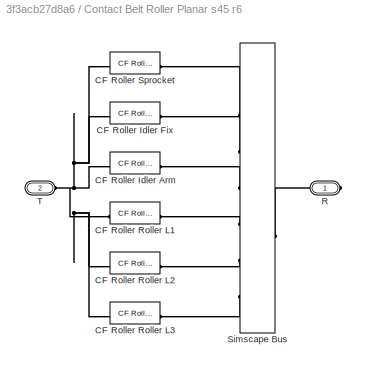
BLOCK [SubSystem] Contact Belt Roller Planar s45 r6
  NameLocation = right
BLOCK [Reference] Contact Belt Roller Planar s45 r6/CF Roller Idler Arm  REF=$bdroot/CF Roller Carcass
Planar s45
  NameLocation = right
  SourceBlock = $bdroot/CF Roller Carcass\nPlanar s45
BLOCK [Reference] Contact Belt Roller Planar s45 r6/CF Roller Idler Fix  REF=$bdroot/CF Roller Carcass
Planar s45
  NameLocation = right
  SourceBlock = $bdroot/CF Roller Carcass\nPlanar s45
BLOCK [Reference] Contact Belt Roller Planar s45 r6/CF Roller Roller L1  REF=$bdroot/CF Roller Carcass
Planar s45
  NameLocation = right
  SourceBlock = $bdroot/CF Roller Carcass\nPlanar s45
BLOCK [Reference] Contact Belt Roller Planar s45 r6/CF Roller Roller L2  REF=$bdroot/CF Roller Carcass
Planar s45
  NameLocation = right
  SourceBlock = $bdroot/CF Roller Carcass\nPlanar s45
BLOCK [Reference] Contact Belt Roller Planar s45 r6/CF Roller Roller L3  REF=$bdroot/CF Roller Carcass
Planar s45
  NameLocation = right
  SourceBlock = $bdroot/CF Roller Carcass\nPlanar s45
BLOCK [Reference] Contact Belt Roller Planar s45 r6/CF Roller Sprocket  REF=$bdroot/CF Roller Carcass
Planar s45
  NameLocation = right
  SourceBlock = $bdroot/CF Roller Carcass\nPlanar s45
BLOCK [PMIOPort] Contact Belt Roller Planar s45 r6/R
  Side = Right
BLOCK [SimscapeBus] Contact Belt Roller Planar s45 r6/Simscape Bus
  HierarchyStrings = S;X;A;L1;L2;L3
BLOCK [PMIOPort] Contact Belt Roller Planar s45 r6/T
  Port = 2
  Side = Left
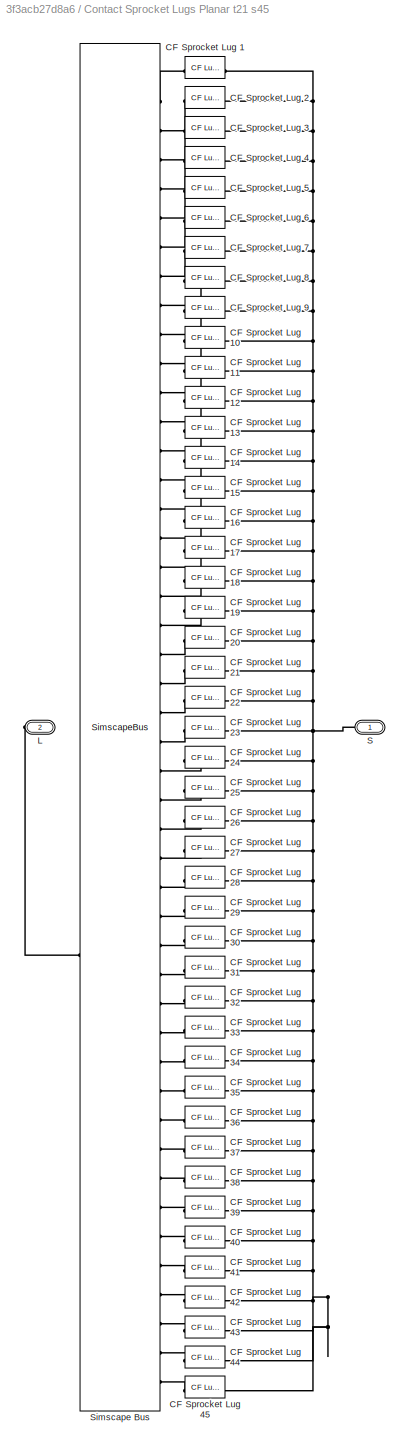
BLOCK [SubSystem] Contact Sprocket Lugs Planar t21 s45
  NameLocation = right
BLOCK [Reference] Contact Sprocket Lugs Planar t21 s45/CF Sprocket Lug 1  REF=$bdroot/CF Lug Sprocket
Planar t21
  NameLocation = right
  SourceBlock = $bdroot/CF Lug Sprocket\nPlanar t21
BLOCK [Reference] Contact Sprocket Lugs Planar t21 s45/CF Sprocket Lug 10  REF=$bdroot/CF Lug Sprocket
Planar t21
  NameLocation = right
  SourceBlock = $bdroot/CF Lug Sprocket\nPlanar t21
BLOCK [Reference] Contact Sprocket Lugs Planar t21 s45/CF Sprocket Lug 11  REF=$bdroot/CF Lug Sprocket
Planar t21
  NameLocation = right
  SourceBlock = $bdroot/CF Lug Sprocket\nPlanar t21
BLOCK [Reference] Contact Sprocket Lugs Planar t21 s45/CF Sprocket Lug 12  REF=$bdroot/CF Lug Sprocket
Planar t21
  NameLocation = right
  SourceBlock = $bdroot/CF Lug Sprocket\nPlanar t21
BLOCK [Reference] Contact Sprocket Lugs Planar t21 s45/CF Sprocket Lug 13  REF=$bdroot/CF Lug Sprocket
Planar t21
  NameLocation = right
  SourceBlock = $bdroot/CF Lug Sprocket\nPlanar t21
BLOCK [Reference] Contact Sprocket Lugs Planar t21 s45/CF Sprocket Lug 14  REF=$bdroot/CF Lug Sprocket
Planar t21
  NameLocation = right
  SourceBlock = $bdroot/CF Lug Sprocket\nPlanar t21
BLOCK [Reference] Contact Sprocket Lugs Planar t21 s45/CF Sprocket Lug 15  REF=$bdroot/CF Lug Sprocket
Planar t21
  NameLocation = right
  SourceBlock = $bdroot/CF Lug Sprocket\nPlanar t21
BLOCK [Reference] Contact Sprocket Lugs Planar t21 s45/CF Sprocket Lug 16  REF=$bdroot/CF Lug Sprocket
Planar t21
  NameLocation = right
  SourceBlock = $bdroot/CF Lug Sprocket\nPlanar t21
BLOCK [Reference] Contact Sprocket Lugs Planar t21 s45/CF Sprocket Lug 17  REF=$bdroot/CF Lug Sprocket
Planar t21
  NameLocation = right
  SourceBlock = $bdroot/CF Lug Sprocket\nPlanar t21
BLOCK [Reference] Contact Sprocket Lugs Planar t21 s45/CF Sprocket Lug 18  REF=$bdroot/CF Lug Sprocket
Planar t21
  NameLocation = right
  SourceBlock = $bdroot/CF Lug Sprocket\nPlanar t21
BLOCK [Reference] Contact Sprocket Lugs Planar t21 s45/CF Sprocket Lug 19  REF=$bdroot/CF Lug Sprocket
Planar t21
  NameLocation = right
  SourceBlock = $bdroot/CF Lug Sprocket\nPlanar t21
BLOCK [Reference] Contact Sprocket Lugs Planar t21 s45/CF Sprocket Lug 2  REF=$bdroot/CF Lug Sprocket
Planar t21
  NameLocation = right
  SourceBlock = $bdroot/CF Lug Sprocket\nPlanar t21
BLOCK [Reference] Contact Sprocket Lugs Planar t21 s45/CF Sprocket Lug 20  REF=$bdroot/CF Lug Sprocket
Planar t21
  NameLocation = right
  SourceBlock = $bdroot/CF Lug Sprocket\nPlanar t21
BLOCK [Reference] Contact Sprocket Lugs Planar t21 s45/CF Sprocket Lug 21  REF=$bdroot/CF Lug Sprocket
Planar t21
  NameLocation = right
  SourceBlock = $bdroot/CF Lug Sprocket\nPlanar t21
BLOCK [Reference] Contact Sprocket Lugs Planar t21 s45/CF Sprocket Lug 22  REF=$bdroot/CF Lug Sprocket
Planar t21
  NameLocation = right
  SourceBlock = $bdroot/CF Lug Sprocket\nPlanar t21
BLOCK [Reference] Contact Sprocket Lugs Planar t21 s45/CF Sprocket Lug 23  REF=$bdroot/CF Lug Sprocket
Planar t21
  NameLocation = right
  SourceBlock = $bdroot/CF Lug Sprocket\nPlanar t21
BLOCK [Reference] Contact Sprocket Lugs Planar t21 s45/CF Sprocket Lug 24  REF=$bdroot/CF Lug Sprocket
Planar t21
  NameLocation = right
  SourceBlock = $bdroot/CF Lug Sprocket\nPlanar t21
BLOCK [Reference] Contact Sprocket Lugs Planar t21 s45/CF Sprocket Lug 25  REF=$bdroot/CF Lug Sprocket
Planar t21
  NameLocation = right
  SourceBlock = $bdroot/CF Lug Sprocket\nPlanar t21
BLOCK [Reference] Contact Sprocket Lugs Planar t21 s45/CF Sprocket Lug 26  REF=$bdroot/CF Lug Sprocket
Planar t21
  NameLocation = right
  SourceBlock = $bdroot/CF Lug Sprocket\nPlanar t21
BLOCK [Reference] Contact Sprocket Lugs Planar t21 s45/CF Sprocket Lug 27  REF=$bdroot/CF Lug Sprocket
Planar t21
  NameLocation = right
  SourceBlock = $bdroot/CF Lug Sprocket\nPlanar t21
BLOCK [Reference] Contact Sprocket Lugs Planar t21 s45/CF Sprocket Lug 28  REF=$bdroot/CF Lug Sprocket
Planar t21
  NameLocation = right
  SourceBlock = $bdroot/CF Lug Sprocket\nPlanar t21
BLOCK [Reference] Contact Sprocket Lugs Planar t21 s45/CF Sprocket Lug 29  REF=$bdroot/CF Lug Sprocket
Planar t21
  NameLocation = right
  SourceBlock = $bdroot/CF Lug Sprocket\nPlanar t21
BLOCK [Reference] Contact Sprocket Lugs Planar t21 s45/CF Sprocket Lug 3  REF=$bdroot/CF Lug Sprocket
Planar t21
  NameLocation = right
  SourceBlock = $bdroot/CF Lug Sprocket\nPlanar t21
BLOCK [Reference] Contact Sprocket Lugs Planar t21 s45/CF Sprocket Lug 30  REF=$bdroot/CF Lug Sprocket
Planar t21
  NameLocation = right
  SourceBlock = $bdroot/CF Lug Sprocket\nPlanar t21
BLOCK [Reference] Contact Sprocket Lugs Planar t21 s45/CF Sprocket Lug 31  REF=$bdroot/CF Lug Sprocket
Planar t21
  NameLocation = right
  SourceBlock = $bdroot/CF Lug Sprocket\nPlanar t21
BLOCK [Reference] Contact Sprocket Lugs Planar t21 s45/CF Sprocket Lug 32  REF=$bdroot/CF Lug Sprocket
Planar t21
  NameLocation = right
  SourceBlock = $bdroot/CF Lug Sprocket\nPlanar t21
BLOCK [Reference] Contact Sprocket Lugs Planar t21 s45/CF Sprocket Lug 33  REF=$bdroot/CF Lug Sprocket
Planar t21
  NameLocation = right
  SourceBlock = $bdroot/CF Lug Sprocket\nPlanar t21
BLOCK [Reference] Contact Sprocket Lugs Planar t21 s45/CF Sprocket Lug 34  REF=$bdroot/CF Lug Sprocket
Planar t21
  NameLocation = right
  SourceBlock = $bdroot/CF Lug Sprocket\nPlanar t21
BLOCK [Reference] Contact Sprocket Lugs Planar t21 s45/CF Sprocket Lug 35  REF=$bdroot/CF Lug Sprocket
Planar t21
  NameLocation = right
  SourceBlock = $bdroot/CF Lug Sprocket\nPlanar t21
BLOCK [Reference] Contact Sprocket Lugs Planar t21 s45/CF Sprocket Lug 36  REF=$bdroot/CF Lug Sprocket
Planar t21
  NameLocation = right
  SourceBlock = $bdroot/CF Lug Sprocket\nPlanar t21
BLOCK [Reference] Contact Sprocket Lugs Planar t21 s45/CF Sprocket Lug 37  REF=$bdroot/CF Lug Sprocket
Planar t21
  NameLocation = right
  SourceBlock = $bdroot/CF Lug Sprocket\nPlanar t21
BLOCK [Reference] Contact Sprocket Lugs Planar t21 s45/CF Sprocket Lug 38  REF=$bdroot/CF Lug Sprocket
Planar t21
  NameLocation = right
  SourceBlock = $bdroot/CF Lug Sprocket\nPlanar t21
BLOCK [Reference] Contact Sprocket Lugs Planar t21 s45/CF Sprocket Lug 39  REF=$bdroot/CF Lug Sprocket
Planar t21
  NameLocation = right
  SourceBlock = $bdroot/CF Lug Sprocket\nPlanar t21
BLOCK [Reference] Contact Sprocket Lugs Planar t21 s45/CF Sprocket Lug 4  REF=$bdroot/CF Lug Sprocket
Planar t21
  NameLocation = right
  SourceBlock = $bdroot/CF Lug Sprocket\nPlanar t21
BLOCK [Reference] Contact Sprocket Lugs Planar t21 s45/CF Sprocket Lug 40  REF=$bdroot/CF Lug Sprocket
Planar t21
  NameLocation = right
  SourceBlock = $bdroot/CF Lug Sprocket\nPlanar t21
BLOCK [Reference] Contact Sprocket Lugs Planar t21 s45/CF Sprocket Lug 41  REF=$bdroot/CF Lug Sprocket
Planar t21
  NameLocation = right
  SourceBlock = $bdroot/CF Lug Sprocket\nPlanar t21
BLOCK [Reference] Contact Sprocket Lugs Planar t21 s45/CF Sprocket Lug 42  REF=$bdroot/CF Lug Sprocket
Planar t21
  NameLocation = right
  SourceBlock = $bdroot/CF Lug Sprocket\nPlanar t21
BLOCK [Reference] Contact Sprocket Lugs Planar t21 s45/CF Sprocket Lug 43  REF=$bdroot/CF Lug Sprocket
Planar t21
  NameLocation = right
  SourceBlock = $bdroot/CF Lug Sprocket\nPlanar t21
BLOCK [Reference] Contact Sprocket Lugs Planar t21 s45/CF Sprocket Lug 44  REF=$bdroot/CF Lug Sprocket
Planar t21
  NameLocation = right
  SourceBlock = $bdroot/CF Lug Sprocket\nPlanar t21
BLOCK [Reference] Contact Sprocket Lugs Planar t21 s45/CF Sprocket Lug 45  REF=$bdroot/CF Lug Sprocket
Planar t21
  NameLocation = right
  SourceBlock = $bdroot/CF Lug Sprocket\nPlanar t21
BLOCK [Reference] Contact Sprocket Lugs Planar t21 s45/CF Sprocket Lug 5  REF=$bdroot/CF Lug Sprocket
Planar t21
  NameLocation = right
  SourceBlock = $bdroot/CF Lug Sprocket\nPlanar t21
BLOCK [Reference] Contact Sprocket Lugs Planar t21 s45/CF Sprocket Lug 6  REF=$bdroot/CF Lug Sprocket
Planar t21
  NameLocation = right
  SourceBlock = $bdroot/CF Lug Sprocket\nPlanar t21
BLOCK [Reference] Contact Sprocket Lugs Planar t21 s45/CF Sprocket Lug 7  REF=$bdroot/CF Lug Sprocket
Planar t21
  NameLocation = right
  SourceBlock = $bdroot/CF Lug Sprocket\nPlanar t21
BLOCK [Reference] Contact Sprocket Lugs Planar t21 s45/CF Sprocket Lug 8  REF=$bdroot/CF Lug Sprocket
Planar t21
  NameLocation = right
  SourceBlock = $bdroot/CF Lug Sprocket\nPlanar t21
BLOCK [Reference] Contact Sprocket Lugs Planar t21 s45/CF Sprocket Lug 9  REF=$bdroot/CF Lug Sprocket
Planar t21
  NameLocation = right
  SourceBlock = $bdroot/CF Lug Sprocket\nPlanar t21
BLOCK [PMIOPort] Contact Sprocket Lugs Planar t21 s45/L
  NameLocation = top
  Port = 2
  Side = Right
BLOCK [PMIOPort] Contact Sprocket Lugs Planar t21 s45/S
  NameLocation = top
  Side = Left
BLOCK [SimscapeBus] Contact Sprocket Lugs Planar t21 s45/Simscape Bus
  ConnectionType = Bus: CBO_TrSpr
  HierarchyStrings = L01;L02;L03;L04;L05;L06;L07;L08;L09;L10;L11;L12;L13;L14;L15;L16;L17;L18;L19;L20;L21;L22;L23;L24;L25;L26;L27;L28;L29;L30;L31;L32;L33;L34;L35;L36;L37;L38;L39;L40;L41;L42;L43;L44;L45
ANNOTATION (root): Contact Forces External
ANNOTATION (root): Contact Forces Internal Planar
PNET net1: CF Lug Sprocket Planar t21/CF Sprocket Lug A10:LConn1 -- CF Lug Sprocket Planar t21/CF Sprocket Lug B10:LConn1 -- CF Lug Sprocket Planar t21/Simscape Bus:LConn10
PNET net2: CF Lug Sprocket Planar t21/CF Sprocket Lug A10:RConn1 -- CF Lug Sprocket Planar t21/CF Sprocket Lug A11:RConn1 -- CF Lug Sprocket Planar t21/CF Sprocket Lug A12:RConn1 -- CF Lug Sprocket Planar t21/CF Sprocket Lug A13:RConn1 -- CF Lug Sprocket Planar t21/CF Sprocket Lug A14:RConn1 -- CF Lug Sprocket Planar t21/CF Sprocket Lug A15:RConn1 -- CF Lug Sprocket Planar t21/CF Sprocket Lug A16:RConn1 -- CF Lug Sprocket Planar t21/CF Sprocket Lug A17:RConn1 -- CF Lug Sprocket Planar t21/CF Sprocket Lug A18:RConn1 -- CF Lug Sprocket Planar t21/CF Sprocket Lug A19:RConn1 -- CF Lug Sprocket Planar t21/CF Sprocket Lug A1:RConn1 -- CF Lug Sprocket Planar t21/CF Sprocket Lug A20:RConn1 -- CF Lug Sprocket Planar t21/CF Sprocket Lug A21:RConn1 -- CF Lug Sprocket Planar t21/CF Sprocket Lug A2:RConn1 -- CF Lug Sprocket Planar t21/CF Sprocket Lug A3:RConn1 -- CF Lug Sprocket Planar t21/CF Sprocket Lug A4:RConn1 -- CF Lug Sprocket Planar t21/CF Sprocket Lug A5:RConn1 -- CF Lug Sprocket Planar t21/CF Sprocket Lug A6:RConn1 -- CF Lug Sprocket Planar t21/CF Sprocket Lug A7:RConn1 -- CF Lug Sprocket Planar t21/CF Sprocket Lug A8:RConn1 -- CF Lug Sprocket Planar t21/CF Sprocket Lug A9:RConn1 -- CF Lug Sprocket Planar t21/Simscape Bus1:LConn1
PNET net3: CF Lug Sprocket Planar t21/CF Sprocket Lug A11:LConn1 -- CF Lug Sprocket Planar t21/CF Sprocket Lug B11:LConn1 -- CF Lug Sprocket Planar t21/Simscape Bus:LConn11
PNET net4: CF Lug Sprocket Planar t21/CF Sprocket Lug A12:LConn1 -- CF Lug Sprocket Planar t21/CF Sprocket Lug B12:LConn1 -- CF Lug Sprocket Planar t21/Simscape Bus:LConn12
PNET net5: CF Lug Sprocket Planar t21/CF Sprocket Lug A13:LConn1 -- CF Lug Sprocket Planar t21/CF Sprocket Lug B13:LConn1 -- CF Lug Sprocket Planar t21/Simscape Bus:LConn13
PNET net6: CF Lug Sprocket Planar t21/CF Sprocket Lug A14:LConn1 -- CF Lug Sprocket Planar t21/CF Sprocket Lug B14:LConn1 -- CF Lug Sprocket Planar t21/Simscape Bus:LConn14
PNET net7: CF Lug Sprocket Planar t21/CF Sprocket Lug A15:LConn1 -- CF Lug Sprocket Planar t21/CF Sprocket Lug B15:LConn1 -- CF Lug Sprocket Planar t21/Simscape Bus:LConn15
PNET net8: CF Lug Sprocket Planar t21/CF Sprocket Lug A16:LConn1 -- CF Lug Sprocket Planar t21/CF Sprocket Lug B16:LConn1 -- CF Lug Sprocket Planar t21/Simscape Bus:LConn16
PNET net9: CF Lug Sprocket Planar t21/CF Sprocket Lug A17:LConn1 -- CF Lug Sprocket Planar t21/CF Sprocket Lug B17:LConn1 -- CF Lug Sprocket Planar t21/Simscape Bus:LConn17
PNET net10: CF Lug Sprocket Planar t21/CF Sprocket Lug A18:LConn1 -- CF Lug Sprocket Planar t21/CF Sprocket Lug B18:LConn1 -- CF Lug Sprocket Planar t21/Simscape Bus:LConn18
PNET net11: CF Lug Sprocket Planar t21/CF Sprocket Lug A19:LConn1 -- CF Lug Sprocket Planar t21/CF Sprocket Lug B19:LConn1 -- CF Lug Sprocket Planar t21/Simscape Bus:LConn19
PNET net12: CF Lug Sprocket Planar t21/CF Sprocket Lug A1:LConn1 -- CF Lug Sprocket Planar t21/CF Sprocket Lug B1:LConn1 -- CF Lug Sprocket Planar t21/Simscape Bus:LConn1
PNET net13: CF Lug Sprocket Planar t21/CF Sprocket Lug A20:LConn1 -- CF Lug Sprocket Planar t21/CF Sprocket Lug B20:LConn1 -- CF Lug Sprocket Planar t21/Simscape Bus:LConn20
PNET net14: CF Lug Sprocket Planar t21/CF Sprocket Lug A21:LConn1 -- CF Lug Sprocket Planar t21/CF Sprocket Lug B21:LConn1 -- CF Lug Sprocket Planar t21/Simscape Bus:LConn21
PNET net15: CF Lug Sprocket Planar t21/CF Sprocket Lug A2:LConn1 -- CF Lug Sprocket Planar t21/CF Sprocket Lug B2:LConn1 -- CF Lug Sprocket Planar t21/Simscape Bus:LConn2
PNET net16: CF Lug Sprocket Planar t21/CF Sprocket Lug A3:LConn1 -- CF Lug Sprocket Planar t21/CF Sprocket Lug B3:LConn1 -- CF Lug Sprocket Planar t21/Simscape Bus:LConn3
PNET net17: CF Lug Sprocket Planar t21/CF Sprocket Lug A4:LConn1 -- CF Lug Sprocket Planar t21/CF Sprocket Lug B4:LConn1 -- CF Lug Sprocket Planar t21/Simscape Bus:LConn4
PNET net18: CF Lug Sprocket Planar t21/CF Sprocket Lug A5:LConn1 -- CF Lug Sprocket Planar t21/CF Sprocket Lug B5:LConn1 -- CF Lug Sprocket Planar t21/Simscape Bus:LConn5
PNET net19: CF Lug Sprocket Planar t21/CF Sprocket Lug A6:LConn1 -- CF Lug Sprocket Planar t21/CF Sprocket Lug B6:LConn1 -- CF Lug Sprocket Planar t21/Simscape Bus:LConn6
PNET net20: CF Lug Sprocket Planar t21/CF Sprocket Lug A7:LConn1 -- CF Lug Sprocket Planar t21/CF Sprocket Lug B7:LConn1 -- CF Lug Sprocket Planar t21/Simscape Bus:LConn7
PNET net21: CF Lug Sprocket Planar t21/CF Sprocket Lug A8:LConn1 -- CF Lug Sprocket Planar t21/CF Sprocket Lug B8:LConn1 -- CF Lug Sprocket Planar t21/Simscape Bus:LConn8
PNET net22: CF Lug Sprocket Planar t21/CF Sprocket Lug A9:LConn1 -- CF Lug Sprocket Planar t21/CF Sprocket Lug B9:LConn1 -- CF Lug Sprocket Planar t21/Simscape Bus:LConn9
PNET net23: CF Lug Sprocket Planar t21/CF Sprocket Lug B10:RConn1 -- CF Lug Sprocket Planar t21/CF Sprocket Lug B11:RConn1 -- CF Lug Sprocket Planar t21/CF Sprocket Lug B12:RConn1 -- CF Lug Sprocket Planar t21/CF Sprocket Lug B13:RConn1 -- CF Lug Sprocket Planar t21/CF Sprocket Lug B14:RConn1 -- CF Lug Sprocket Planar t21/CF Sprocket Lug B15:RConn1 -- CF Lug Sprocket Planar t21/CF Sprocket Lug B16:RConn1 -- CF Lug Sprocket Planar t21/CF Sprocket Lug B17:RConn1 -- CF Lug Sprocket Planar t21/CF Sprocket Lug B18:RConn1 -- CF Lug Sprocket Planar t21/CF Sprocket Lug B19:RConn1 -- CF Lug Sprocket Planar t21/CF Sprocket Lug B1:RConn1 -- CF Lug Sprocket Planar t21/CF Sprocket Lug B20:RConn1 -- CF Lug Sprocket Planar t21/CF Sprocket Lug B21:RConn1 -- CF Lug Sprocket Planar t21/CF Sprocket Lug B2:RConn1 -- CF Lug Sprocket Planar t21/CF Sprocket Lug B3:RConn1 -- CF Lug Sprocket Planar t21/CF Sprocket Lug B4:RConn1 -- CF Lug Sprocket Planar t21/CF Sprocket Lug B5:RConn1 -- CF Lug Sprocket Planar t21/CF Sprocket Lug B6:RConn1 -- CF Lug Sprocket Planar t21/CF Sprocket Lug B7:RConn1 -- CF Lug Sprocket Planar t21/CF Sprocket Lug B8:RConn1 -- CF Lug Sprocket Planar t21/CF Sprocket Lug B9:RConn1 -- CF Lug Sprocket Planar t21/Simscape Bus1:LConn2
PLINE CF Lug Sprocket Planar t21/L:RConn1 -- CF Lug Sprocket Planar t21/Simscape Bus1:RConn1
PLINE CF Lug Sprocket Planar t21/P:RConn1 -- CF Lug Sprocket Planar t21/Simscape Bus:RConn1
PLINE CF Roller Carcass Planar s45/CF Roller Carcass 10:LConn1 -- CF Roller Carcass Planar s45/Simscape Bus:LConn10
PNET net24: CF Roller Carcass Planar s45/CF Roller Carcass 10:RConn1 -- CF Roller Carcass Planar s45/CF Roller Carcass 11:RConn1 -- CF Roller Carcass Planar s45/CF Roller Carcass 12:RConn1 -- CF Roller Carcass Planar s45/CF Roller Carcass 13:RConn1 -- CF Roller Carcass Planar s45/CF Roller Carcass 14:RConn1 -- CF Roller Carcass Planar s45/CF Roller Carcass 15:RConn1 -- CF Roller Carcass Planar s45/CF Roller Carcass 16:RConn1 -- CF Roller Carcass Planar s45/CF Roller Carcass 17:RConn1 -- CF Roller Carcass Planar s45/CF Roller Carcass 18:RConn1 -- CF Roller Carcass Planar s45/CF Roller Carcass 19:RConn1 -- CF Roller Carcass Planar s45/CF Roller Carcass 1:RConn1 -- CF Roller Carcass Planar s45/CF Roller Carcass 20:RConn1 -- CF Roller Carcass Planar s45/CF Roller Carcass 21:RConn1 -- CF Roller Carcass Planar s45/CF Roller Carcass 22:RConn1 -- CF Roller Carcass Planar s45/CF Roller Carcass 23:RConn1 -- CF Roller Carcass Planar s45/CF Roller Carcass 24:RConn1 -- CF Roller Carcass Planar s45/CF Roller Carcass 25:RConn1 -- CF Roller Carcass Planar s45/CF Roller Carcass 26:RConn1 -- CF Roller Carcass Planar s45/CF Roller Carcass 27:RConn1 -- CF Roller Carcass Planar s45/CF Roller Carcass 28:RConn1 -- CF Roller Carcass Planar s45/CF Roller Carcass 29:RConn1 -- CF Roller Carcass Planar s45/CF Roller Carcass 2:RConn1 -- CF Roller Carcass Planar s45/CF Roller Carcass 30:RConn1 -- CF Roller Carcass Planar s45/CF Roller Carcass 31:RConn1 -- CF Roller Carcass Planar s45/CF Roller Carcass 32:RConn1 -- CF Roller Carcass Planar s45/CF Roller Carcass 33:RConn1 -- CF Roller Carcass Planar s45/CF Roller Carcass 34:RConn1 -- CF Roller Carcass Planar s45/CF Roller Carcass 35:RConn1 -- CF Roller Carcass Planar s45/CF Roller Carcass 36:RConn1 -- CF Roller Carcass Planar s45/CF Roller Carcass 37:RConn1 -- CF Roller Carcass Planar s45/CF Roller Carcass 38:RConn1 -- CF Roller Carcass Planar s45/CF Roller Carcass 39:RConn1 -- CF Roller Carcass Planar s45/CF Roller Carcass 3:RConn1 -- CF Roller Carcass Planar s45/CF Roller Carcass 40:RConn1 -- CF Roller Carcass Planar s45/CF Roller Carcass 41:RConn1 -- CF Roller Carcass Planar s45/CF Roller Carcass 42:RConn1 -- CF Roller Carcass Planar s45/CF Roller Carcass 43:RConn1 -- CF Roller Carcass Planar s45/CF Roller Carcass 44:RConn1 -- CF Roller Carcass Planar s45/CF Roller Carcass 45:RConn1 -- CF Roller Carcass Planar s45/CF Roller Carcass 4:RConn1 -- CF Roller Carcass Planar s45/CF Roller Carcass 5:RConn1 -- CF Roller Carcass Planar s45/CF Roller Carcass 6:RConn1 -- CF Roller Carcass Planar s45/CF Roller Carcass 7:RConn1 -- CF Roller Carcass Planar s45/CF Roller Carcass 8:RConn1 -- CF Roller Carcass Planar s45/CF Roller Carcass 9:RConn1 -- CF Roller Carcass Planar s45/R:RConn1
PLINE CF Roller Carcass Planar s45/CF Roller Carcass 11:LConn1 -- CF Roller Carcass Planar s45/Simscape Bus:LConn11
PLINE CF Roller Carcass Planar s45/CF Roller Carcass 12:LConn1 -- CF Roller Carcass Planar s45/Simscape Bus:LConn12
PLINE CF Roller Carcass Planar s45/CF Roller Carcass 13:LConn1 -- CF Roller Carcass Planar s45/Simscape Bus:LConn13
PLINE CF Roller Carcass Planar s45/CF Roller Carcass 14:LConn1 -- CF Roller Carcass Planar s45/Simscape Bus:LConn14
PLINE CF Roller Carcass Planar s45/CF Roller Carcass 15:LConn1 -- CF Roller Carcass Planar s45/Simscape Bus:LConn15
PLINE CF Roller Carcass Planar s45/CF Roller Carcass 16:LConn1 -- CF Roller Carcass Planar s45/Simscape Bus:LConn16
PLINE CF Roller Carcass Planar s45/CF Roller Carcass 17:LConn1 -- CF Roller Carcass Planar s45/Simscape Bus:LConn17
PLINE CF Roller Carcass Planar s45/CF Roller Carcass 18:LConn1 -- CF Roller Carcass Planar s45/Simscape Bus:LConn18
PLINE CF Roller Carcass Planar s45/CF Roller Carcass 19:LConn1 -- CF Roller Carcass Planar s45/Simscape Bus:LConn19
PLINE CF Roller Carcass Planar s45/CF Roller Carcass 1:LConn1 -- CF Roller Carcass Planar s45/Simscape Bus:LConn1
PLINE CF Roller Carcass Planar s45/CF Roller Carcass 20:LConn1 -- CF Roller Carcass Planar s45/Simscape Bus:LConn20
PLINE CF Roller Carcass Planar s45/CF Roller Carcass 21:LConn1 -- CF Roller Carcass Planar s45/Simscape Bus:LConn21
PLINE CF Roller Carcass Planar s45/CF Roller Carcass 22:LConn1 -- CF Roller Carcass Planar s45/Simscape Bus:LConn22
PLINE CF Roller Carcass Planar s45/CF Roller Carcass 23:LConn1 -- CF Roller Carcass Planar s45/Simscape Bus:LConn23
PLINE CF Roller Carcass Planar s45/CF Roller Carcass 24:LConn1 -- CF Roller Carcass Planar s45/Simscape Bus:LConn24
PLINE CF Roller Carcass Planar s45/CF Roller Carcass 25:LConn1 -- CF Roller Carcass Planar s45/Simscape Bus:LConn25
PLINE CF Roller Carcass Planar s45/CF Roller Carcass 26:LConn1 -- CF Roller Carcass Planar s45/Simscape Bus:LConn26
PLINE CF Roller Carcass Planar s45/CF Roller Carcass 27:LConn1 -- CF Roller Carcass Planar s45/Simscape Bus:LConn27
PLINE CF Roller Carcass Planar s45/CF Roller Carcass 28:LConn1 -- CF Roller Carcass Planar s45/Simscape Bus:LConn28
PLINE CF Roller Carcass Planar s45/CF Roller Carcass 29:LConn1 -- CF Roller Carcass Planar s45/Simscape Bus:LConn29
PLINE CF Roller Carcass Planar s45/CF Roller Carcass 2:LConn1 -- CF Roller Carcass Planar s45/Simscape Bus:LConn2
PLINE CF Roller Carcass Planar s45/CF Roller Carcass 30:LConn1 -- CF Roller Carcass Planar s45/Simscape Bus:LConn30
PLINE CF Roller Carcass Planar s45/CF Roller Carcass 31:LConn1 -- CF Roller Carcass Planar s45/Simscape Bus:LConn31
PLINE CF Roller Carcass Planar s45/CF Roller Carcass 32:LConn1 -- CF Roller Carcass Planar s45/Simscape Bus:LConn32
PLINE CF Roller Carcass Planar s45/CF Roller Carcass 33:LConn1 -- CF Roller Carcass Planar s45/Simscape Bus:LConn33
PLINE CF Roller Carcass Planar s45/CF Roller Carcass 34:LConn1 -- CF Roller Carcass Planar s45/Simscape Bus:LConn34
PLINE CF Roller Carcass Planar s45/CF Roller Carcass 35:LConn1 -- CF Roller Carcass Planar s45/Simscape Bus:LConn35
PLINE CF Roller Carcass Planar s45/CF Roller Carcass 36:LConn1 -- CF Roller Carcass Planar s45/Simscape Bus:LConn36
PLINE CF Roller Carcass Planar s45/CF Roller Carcass 37:LConn1 -- CF Roller Carcass Planar s45/Simscape Bus:LConn37
PLINE CF Roller Carcass Planar s45/CF Roller Carcass 38:LConn1 -- CF Roller Carcass Planar s45/Simscape Bus:LConn38
PLINE CF Roller Carcass Planar s45/CF Roller Carcass 39:LConn1 -- CF Roller Carcass Planar s45/Simscape Bus:LConn39
PLINE CF Roller Carcass Planar s45/CF Roller Carcass 3:LConn1 -- CF Roller Carcass Planar s45/Simscape Bus:LConn3
PLINE CF Roller Carcass Planar s45/CF Roller Carcass 40:LConn1 -- CF Roller Carcass Planar s45/Simscape Bus:LConn40
PLINE CF Roller Carcass Planar s45/CF Roller Carcass 41:LConn1 -- CF Roller Carcass Planar s45/Simscape Bus:LConn41
PLINE CF Roller Carcass Planar s45/CF Roller Carcass 42:LConn1 -- CF Roller Carcass Planar s45/Simscape Bus:LConn42
PLINE CF Roller Carcass Planar s45/CF Roller Carcass 43:LConn1 -- CF Roller Carcass Planar s45/Simscape Bus:LConn43
PLINE CF Roller Carcass Planar s45/CF Roller Carcass 44:LConn1 -- CF Roller Carcass Planar s45/Simscape Bus:LConn44
PLINE CF Roller Carcass Planar s45/CF Roller Carcass 45:LConn1 -- CF Roller Carcass Planar s45/Simscape Bus:LConn45
PLINE CF Roller Carcass Planar s45/CF Roller Carcass 4:LConn1 -- CF Roller Carcass Planar s45/Simscape Bus:LConn4
PLINE CF Roller Carcass Planar s45/CF Roller Carcass 5:LConn1 -- CF Roller Carcass Planar s45/Simscape Bus:LConn5
PLINE CF Roller Carcass Planar s45/CF Roller Carcass 6:LConn1 -- CF Roller Carcass Planar s45/Simscape Bus:LConn6
PLINE CF Roller Carcass Planar s45/CF Roller Carcass 7:LConn1 -- CF Roller Carcass Planar s45/Simscape Bus:LConn7
PLINE CF Roller Carcass Planar s45/CF Roller Carcass 8:LConn1 -- CF Roller Carcass Planar s45/Simscape Bus:LConn8
PLINE CF Roller Carcass Planar s45/CF Roller Carcass 9:LConn1 -- CF Roller Carcass Planar s45/Simscape Bus:LConn9
PLINE CF Roller Carcass Planar s45/Simscape Bus:RConn1 -- CF Roller Carcass Planar s45/T:RConn1
PLINE CF Roller Terrain s45/CF Belt Terrain 10:LConn1 -- CF Roller Terrain s45/Simscape Bus:LConn10
PNET net25: CF Roller Terrain s45/CF Belt Terrain 10:RConn1 -- CF Roller Terrain s45/CF Belt Terrain 11:RConn1 -- CF Roller Terrain s45/CF Belt Terrain 12:RConn1 -- CF Roller Terrain s45/CF Belt Terrain 13:RConn1 -- CF Roller Terrain s45/CF Belt Terrain 14:RConn1 -- CF Roller Terrain s45/CF Belt Terrain 15:RConn1 -- CF Roller Terrain s45/CF Belt Terrain 16:RConn1 -- CF Roller Terrain s45/CF Belt Terrain 17:RConn1 -- CF Roller Terrain s45/CF Belt Terrain 18:RConn1 -- CF Roller Terrain s45/CF Belt Terrain 19:RConn1 -- CF Roller Terrain s45/CF Belt Terrain 1:RConn1 -- CF Roller Terrain s45/CF Belt Terrain 20:RConn1 -- CF Roller Terrain s45/CF Belt Terrain 21:RConn1 -- CF Roller Terrain s45/CF Belt Terrain 22:RConn1 -- CF Roller Terrain s45/CF Belt Terrain 23:RConn1 -- CF Roller Terrain s45/CF Belt Terrain 24:RConn1 -- CF Roller Terrain s45/CF Belt Terrain 25:RConn1 -- CF Roller Terrain s45/CF Belt Terrain 26:RConn1 -- CF Roller Terrain s45/CF Belt Terrain 27:RConn1 -- CF Roller Terrain s45/CF Belt Terrain 28:RConn1 -- CF Roller Terrain s45/CF Belt Terrain 29:RConn1 -- CF Roller Terrain s45/CF Belt Terrain 2:RConn1 -- CF Roller Terrain s45/CF Belt Terrain 30:RConn1 -- CF Roller Terrain s45/CF Belt Terrain 31:RConn1 -- CF Roller Terrain s45/CF Belt Terrain 32:RConn1 -- CF Roller Terrain s45/CF Belt Terrain 33:RConn1 -- CF Roller Terrain s45/CF Belt Terrain 34:RConn1 -- CF Roller Terrain s45/CF Belt Terrain 35:RConn1 -- CF Roller Terrain s45/CF Belt Terrain 36:RConn1 -- CF Roller Terrain s45/CF Belt Terrain 37:RConn1 -- CF Roller Terrain s45/CF Belt Terrain 38:RConn1 -- CF Roller Terrain s45/CF Belt Terrain 39:RConn1 -- CF Roller Terrain s45/CF Belt Terrain 3:RConn1 -- CF Roller Terrain s45/CF Belt Terrain 40:RConn1 -- CF Roller Terrain s45/CF Belt Terrain 41:RConn1 -- CF Roller Terrain s45/CF Belt Terrain 42:RConn1 -- CF Roller Terrain s45/CF Belt Terrain 43:RConn1 -- CF Roller Terrain s45/CF Belt Terrain 44:RConn1 -- CF Roller Terrain s45/CF Belt Terrain 45:RConn1 -- CF Roller Terrain s45/CF Belt Terrain 4:RConn1 -- CF Roller Terrain s45/CF Belt Terrain 5:RConn1 -- CF Roller Terrain s45/CF Belt Terrain 6:RConn1 -- CF Roller Terrain s45/CF Belt Terrain 7:RConn1 -- CF Roller Terrain s45/CF Belt Terrain 8:RConn1 -- CF Roller Terrain s45/CF Belt Terrain 9:RConn1 -- CF Roller Terrain s45/R:RConn1
PLINE CF Roller Terrain s45/CF Belt Terrain 11:LConn1 -- CF Roller Terrain s45/Simscape Bus:LConn11
PLINE CF Roller Terrain s45/CF Belt Terrain 12:LConn1 -- CF Roller Terrain s45/Simscape Bus:LConn12
PLINE CF Roller Terrain s45/CF Belt Terrain 13:LConn1 -- CF Roller Terrain s45/Simscape Bus:LConn13
PLINE CF Roller Terrain s45/CF Belt Terrain 14:LConn1 -- CF Roller Terrain s45/Simscape Bus:LConn14
PLINE CF Roller Terrain s45/CF Belt Terrain 15:LConn1 -- CF Roller Terrain s45/Simscape Bus:LConn15
PLINE CF Roller Terrain s45/CF Belt Terrain 16:LConn1 -- CF Roller Terrain s45/Simscape Bus:LConn16
PLINE CF Roller Terrain s45/CF Belt Terrain 17:LConn1 -- CF Roller Terrain s45/Simscape Bus:LConn17
PLINE CF Roller Terrain s45/CF Belt Terrain 18:LConn1 -- CF Roller Terrain s45/Simscape Bus:LConn18
PLINE CF Roller Terrain s45/CF Belt Terrain 19:LConn1 -- CF Roller Terrain s45/Simscape Bus:LConn19
PLINE CF Roller Terrain s45/CF Belt Terrain 1:LConn1 -- CF Roller Terrain s45/Simscape Bus:LConn1
PLINE CF Roller Terrain s45/CF Belt Terrain 20:LConn1 -- CF Roller Terrain s45/Simscape Bus:LConn20
PLINE CF Roller Terrain s45/CF Belt Terrain 21:LConn1 -- CF Roller Terrain s45/Simscape Bus:LConn21
PLINE CF Roller Terrain s45/CF Belt Terrain 22:LConn1 -- CF Roller Terrain s45/Simscape Bus:LConn22
PLINE CF Roller Terrain s45/CF Belt Terrain 23:LConn1 -- CF Roller Terrain s45/Simscape Bus:LConn23
PLINE CF Roller Terrain s45/CF Belt Terrain 24:LConn1 -- CF Roller Terrain s45/Simscape Bus:LConn24
PLINE CF Roller Terrain s45/CF Belt Terrain 25:LConn1 -- CF Roller Terrain s45/Simscape Bus:LConn25
PLINE CF Roller Terrain s45/CF Belt Terrain 26:LConn1 -- CF Roller Terrain s45/Simscape Bus:LConn26
PLINE CF Roller Terrain s45/CF Belt Terrain 27:LConn1 -- CF Roller Terrain s45/Simscape Bus:LConn27
PLINE CF Roller Terrain s45/CF Belt Terrain 28:LConn1 -- CF Roller Terrain s45/Simscape Bus:LConn28
PLINE CF Roller Terrain s45/CF Belt Terrain 29:LConn1 -- CF Roller Terrain s45/Simscape Bus:LConn29
PLINE CF Roller Terrain s45/CF Belt Terrain 2:LConn1 -- CF Roller Terrain s45/Simscape Bus:LConn2
PLINE CF Roller Terrain s45/CF Belt Terrain 30:LConn1 -- CF Roller Terrain s45/Simscape Bus:LConn30
PLINE CF Roller Terrain s45/CF Belt Terrain 31:LConn1 -- CF Roller Terrain s45/Simscape Bus:LConn31
PLINE CF Roller Terrain s45/CF Belt Terrain 32:LConn1 -- CF Roller Terrain s45/Simscape Bus:LConn32
PLINE CF Roller Terrain s45/CF Belt Terrain 33:LConn1 -- CF Roller Terrain s45/Simscape Bus:LConn33
PLINE CF Roller Terrain s45/CF Belt Terrain 34:LConn1 -- CF Roller Terrain s45/Simscape Bus:LConn34
PLINE CF Roller Terrain s45/CF Belt Terrain 35:LConn1 -- CF Roller Terrain s45/Simscape Bus:LConn35
PLINE CF Roller Terrain s45/CF Belt Terrain 36:LConn1 -- CF Roller Terrain s45/Simscape Bus:LConn36
PLINE CF Roller Terrain s45/CF Belt Terrain 37:LConn1 -- CF Roller Terrain s45/Simscape Bus:LConn37
PLINE CF Roller Terrain s45/CF Belt Terrain 38:LConn1 -- CF Roller Terrain s45/Simscape Bus:LConn38
PLINE CF Roller Terrain s45/CF Belt Terrain 39:LConn1 -- CF Roller Terrain s45/Simscape Bus:LConn39
PLINE CF Roller Terrain s45/CF Belt Terrain 3:LConn1 -- CF Roller Terrain s45/Simscape Bus:LConn3
PLINE CF Roller Terrain s45/CF Belt Terrain 40:LConn1 -- CF Roller Terrain s45/Simscape Bus:LConn40
PLINE CF Roller Terrain s45/CF Belt Terrain 41:LConn1 -- CF Roller Terrain s45/Simscape Bus:LConn41
PLINE CF Roller Terrain s45/CF Belt Terrain 42:LConn1 -- CF Roller Terrain s45/Simscape Bus:LConn42
PLINE CF Roller Terrain s45/CF Belt Terrain 43:LConn1 -- CF Roller Terrain s45/Simscape Bus:LConn43
PLINE CF Roller Terrain s45/CF Belt Terrain 44:LConn1 -- CF Roller Terrain s45/Simscape Bus:LConn44
PLINE CF Roller Terrain s45/CF Belt Terrain 45:LConn1 -- CF Roller Terrain s45/Simscape Bus:LConn45
PLINE CF Roller Terrain s45/CF Belt Terrain 4:LConn1 -- CF Roller Terrain s45/Simscape Bus:LConn4
PLINE CF Roller Terrain s45/CF Belt Terrain 5:LConn1 -- CF Roller Terrain s45/Simscape Bus:LConn5
PLINE CF Roller Terrain s45/CF Belt Terrain 6:LConn1 -- CF Roller Terrain s45/Simscape Bus:LConn6
PLINE CF Roller Terrain s45/CF Belt Terrain 7:LConn1 -- CF Roller Terrain s45/Simscape Bus:LConn7
PLINE CF Roller Terrain s45/CF Belt Terrain 8:LConn1 -- CF Roller Terrain s45/Simscape Bus:LConn8
PLINE CF Roller Terrain s45/CF Belt Terrain 9:LConn1 -- CF Roller Terrain s45/Simscape Bus:LConn9
PLINE CF Roller Terrain s45/Simscape Bus:RConn1 -- CF Roller Terrain s45/T:RConn1
PLINE Contact Belt Roller Planar s45 r6/CF Roller Idler Arm:LConn1 -- Contact Belt Roller Planar s45 r6/Simscape Bus:LConn3
PNET net26: Contact Belt Roller Planar s45 r6/CF Roller Idler Arm:RConn1 -- Contact Belt Roller Planar s45 r6/CF Roller Idler Fix:RConn1 -- Contact Belt Roller Planar s45 r6/CF Roller Roller L1:RConn1 -- Contact Belt Roller Planar s45 r6/CF Roller Roller L2:RConn1 -- Contact Belt Roller Planar s45 r6/CF Roller Roller L3:RConn1 -- Contact Belt Roller Planar s45 r6/CF Roller Sprocket:RConn1 -- Contact Belt Roller Planar s45 r6/T:RConn1
PLINE Contact Belt Roller Planar s45 r6/CF Roller Idler Fix:LConn1 -- Contact Belt Roller Planar s45 r6/Simscape Bus:LConn2
PLINE Contact Belt Roller Planar s45 r6/CF Roller Roller L1:LConn1 -- Contact Belt Roller Planar s45 r6/Simscape Bus:LConn4
PLINE Contact Belt Roller Planar s45 r6/CF Roller Roller L2:LConn1 -- Contact Belt Roller Planar s45 r6/Simscape Bus:LConn5
PLINE Contact Belt Roller Planar s45 r6/CF Roller Roller L3:LConn1 -- Contact Belt Roller Planar s45 r6/Simscape Bus:LConn6
PLINE Contact Belt Roller Planar s45 r6/CF Roller Sprocket:LConn1 -- Contact Belt Roller Planar s45 r6/Simscape Bus:LConn1
PLINE Contact Belt Roller Planar s45 r6/R:RConn1 -- Contact Belt Roller Planar s45 r6/Simscape Bus:RConn1
PNET net27: Contact Sprocket Lugs Planar t21 s45/CF Sprocket Lug 10:LConn1 -- Contact Sprocket Lugs Planar t21 s45/CF Sprocket Lug 11:LConn1 -- Contact Sprocket Lugs Planar t21 s45/CF Sprocket Lug 12:LConn1 -- Contact Sprocket Lugs Planar t21 s45/CF Sprocket Lug 13:LConn1 -- Contact Sprocket Lugs Planar t21 s45/CF Sprocket Lug 14:LConn1 -- Contact Sprocket Lugs Planar t21 s45/CF Sprocket Lug 15:LConn1 -- Contact Sprocket Lugs Planar t21 s45/CF Sprocket Lug 16:LConn1 -- Contact Sprocket Lugs Planar t21 s45/CF Sprocket Lug 17:LConn1 -- Contact Sprocket Lugs Planar t21 s45/CF Sprocket Lug 18:LConn1 -- Contact Sprocket Lugs Planar t21 s45/CF Sprocket Lug 19:LConn1 -- Contact Sprocket Lugs Planar t21 s45/CF Sprocket Lug 1:LConn1 -- Contact Sprocket Lugs Planar t21 s45/CF Sprocket Lug 20:LConn1 -- Contact Sprocket Lugs Planar t21 s45/CF Sprocket Lug 21:LConn1 -- Contact Sprocket Lugs Planar t21 s45/CF Sprocket Lug 22:LConn1 -- Contact Sprocket Lugs Planar t21 s45/CF Sprocket Lug 23:LConn1 -- Contact Sprocket Lugs Planar t21 s45/CF Sprocket Lug 24:LConn1 -- Contact Sprocket Lugs Planar t21 s45/CF Sprocket Lug 25:LConn1 -- Contact Sprocket Lugs Planar t21 s45/CF Sprocket Lug 26:LConn1 -- Contact Sprocket Lugs Planar t21 s45/CF Sprocket Lug 27:LConn1 -- Contact Sprocket Lugs Planar t21 s45/CF Sprocket Lug 28:LConn1 -- Contact Sprocket Lugs Planar t21 s45/CF Sprocket Lug 29:LConn1 -- Contact Sprocket Lugs Planar t21 s45/CF Sprocket Lug 2:LConn1 -- Contact Sprocket Lugs Planar t21 s45/CF Sprocket Lug 30:LConn1 -- Contact Sprocket Lugs Planar t21 s45/CF Sprocket Lug 31:LConn1 -- Contact Sprocket Lugs Planar t21 s45/CF Sprocket Lug 32:LConn1 -- Contact Sprocket Lugs Planar t21 s45/CF Sprocket Lug 33:LConn1 -- Contact Sprocket Lugs Planar t21 s45/CF Sprocket Lug 34:LConn1 -- Contact Sprocket Lugs Planar t21 s45/CF Sprocket Lug 35:LConn1 -- Contact Sprocket Lugs Planar t21 s45/CF Sprocket Lug 36:LConn1 -- Contact Sprocket Lugs Planar t21 s45/CF Sprocket Lug 37:LConn1 -- Contact Sprocket Lugs Planar t21 s45/CF Sprocket Lug 38:LConn1 -- Contact Sprocket Lugs Planar t21 s45/CF Sprocket Lug 39:LConn1 -- Contact Sprocket Lugs Planar t21 s45/CF Sprocket Lug 3:LConn1 -- Contact Sprocket Lugs Planar t21 s45/CF Sprocket Lug 40:LConn1 -- Contact Sprocket Lugs Planar t21 s45/CF Sprocket Lug 41:LConn1 -- Contact Sprocket Lugs Planar t21 s45/CF Sprocket Lug 42:LConn1 -- Contact Sprocket Lugs Planar t21 s45/CF Sprocket Lug 43:LConn1 -- Contact Sprocket Lugs Planar t21 s45/CF Sprocket Lug 44:LConn1 -- Contact Sprocket Lugs Planar t21 s45/CF Sprocket Lug 45:LConn1 -- Contact Sprocket Lugs Planar t21 s45/CF Sprocket Lug 4:LConn1 -- Contact Sprocket Lugs Planar t21 s45/CF Sprocket Lug 5:LConn1 -- Contact Sprocket Lugs Planar t21 s45/CF Sprocket Lug 6:LConn1 -- Contact Sprocket Lugs Planar t21 s45/CF Sprocket Lug 7:LConn1 -- Contact Sprocket Lugs Planar t21 s45/CF Sprocket Lug 8:LConn1 -- Contact Sprocket Lugs Planar t21 s45/CF Sprocket Lug 9:LConn1 -- Contact Sprocket Lugs Planar t21 s45/S:RConn1
PLINE Contact Sprocket Lugs Planar t21 s45/CF Sprocket Lug 10:RConn1 -- Contact Sprocket Lugs Planar t21 s45/Simscape Bus:LConn10
PLINE Contact Sprocket Lugs Planar t21 s45/CF Sprocket Lug 11:RConn1 -- Contact Sprocket Lugs Planar t21 s45/Simscape Bus:LConn11
PLINE Contact Sprocket Lugs Planar t21 s45/CF Sprocket Lug 12:RConn1 -- Contact Sprocket Lugs Planar t21 s45/Simscape Bus:LConn12
PLINE Contact Sprocket Lugs Planar t21 s45/CF Sprocket Lug 13:RConn1 -- Contact Sprocket Lugs Planar t21 s45/Simscape Bus:LConn13
PLINE Contact Sprocket Lugs Planar t21 s45/CF Sprocket Lug 14:RConn1 -- Contact Sprocket Lugs Planar t21 s45/Simscape Bus:LConn14
PLINE Contact Sprocket Lugs Planar t21 s45/CF Sprocket Lug 15:RConn1 -- Contact Sprocket Lugs Planar t21 s45/Simscape Bus:LConn15
PLINE Contact Sprocket Lugs Planar t21 s45/CF Sprocket Lug 16:RConn1 -- Contact Sprocket Lugs Planar t21 s45/Simscape Bus:LConn16
PLINE Contact Sprocket Lugs Planar t21 s45/CF Sprocket Lug 17:RConn1 -- Contact Sprocket Lugs Planar t21 s45/Simscape Bus:LConn17
PLINE Contact Sprocket Lugs Planar t21 s45/CF Sprocket Lug 18:RConn1 -- Contact Sprocket Lugs Planar t21 s45/Simscape Bus:LConn18
PLINE Contact Sprocket Lugs Planar t21 s45/CF Sprocket Lug 19:RConn1 -- Contact Sprocket Lugs Planar t21 s45/Simscape Bus:LConn19
PLINE Contact Sprocket Lugs Planar t21 s45/CF Sprocket Lug 1:RConn1 -- Contact Sprocket Lugs Planar t21 s45/Simscape Bus:LConn1
PLINE Contact Sprocket Lugs Planar t21 s45/CF Sprocket Lug 20:RConn1 -- Contact Sprocket Lugs Planar t21 s45/Simscape Bus:LConn20
PLINE Contact Sprocket Lugs Planar t21 s45/CF Sprocket Lug 21:RConn1 -- Contact Sprocket Lugs Planar t21 s45/Simscape Bus:LConn21
PLINE Contact Sprocket Lugs Planar t21 s45/CF Sprocket Lug 22:RConn1 -- Contact Sprocket Lugs Planar t21 s45/Simscape Bus:LConn22
PLINE Contact Sprocket Lugs Planar t21 s45/CF Sprocket Lug 23:RConn1 -- Contact Sprocket Lugs Planar t21 s45/Simscape Bus:LConn23
PLINE Contact Sprocket Lugs Planar t21 s45/CF Sprocket Lug 24:RConn1 -- Contact Sprocket Lugs Planar t21 s45/Simscape Bus:LConn24
PLINE Contact Sprocket Lugs Planar t21 s45/CF Sprocket Lug 25:RConn1 -- Contact Sprocket Lugs Planar t21 s45/Simscape Bus:LConn25
PLINE Contact Sprocket Lugs Planar t21 s45/CF Sprocket Lug 26:RConn1 -- Contact Sprocket Lugs Planar t21 s45/Simscape Bus:LConn26
PLINE Contact Sprocket Lugs Planar t21 s45/CF Sprocket Lug 27:RConn1 -- Contact Sprocket Lugs Planar t21 s45/Simscape Bus:LConn27
PLINE Contact Sprocket Lugs Planar t21 s45/CF Sprocket Lug 28:RConn1 -- Contact Sprocket Lugs Planar t21 s45/Simscape Bus:LConn28
PLINE Contact Sprocket Lugs Planar t21 s45/CF Sprocket Lug 29:RConn1 -- Contact Sprocket Lugs Planar t21 s45/Simscape Bus:LConn29
PLINE Contact Sprocket Lugs Planar t21 s45/CF Sprocket Lug 2:RConn1 -- Contact Sprocket Lugs Planar t21 s45/Simscape Bus:LConn2
PLINE Contact Sprocket Lugs Planar t21 s45/CF Sprocket Lug 30:RConn1 -- Contact Sprocket Lugs Planar t21 s45/Simscape Bus:LConn30
PLINE Contact Sprocket Lugs Planar t21 s45/CF Sprocket Lug 31:RConn1 -- Contact Sprocket Lugs Planar t21 s45/Simscape Bus:LConn31
PLINE Contact Sprocket Lugs Planar t21 s45/CF Sprocket Lug 32:RConn1 -- Contact Sprocket Lugs Planar t21 s45/Simscape Bus:LConn32
PLINE Contact Sprocket Lugs Planar t21 s45/CF Sprocket Lug 33:RConn1 -- Contact Sprocket Lugs Planar t21 s45/Simscape Bus:LConn33
PLINE Contact Sprocket Lugs Planar t21 s45/CF Sprocket Lug 34:RConn1 -- Contact Sprocket Lugs Planar t21 s45/Simscape Bus:LConn34
PLINE Contact Sprocket Lugs Planar t21 s45/CF Sprocket Lug 35:RConn1 -- Contact Sprocket Lugs Planar t21 s45/Simscape Bus:LConn35
PLINE Contact Sprocket Lugs Planar t21 s45/CF Sprocket Lug 36:RConn1 -- Contact Sprocket Lugs Planar t21 s45/Simscape Bus:LConn36
PLINE Contact Sprocket Lugs Planar t21 s45/CF Sprocket Lug 37:RConn1 -- Contact Sprocket Lugs Planar t21 s45/Simscape Bus:LConn37
PLINE Contact Sprocket Lugs Planar t21 s45/CF Sprocket Lug 38:RConn1 -- Contact Sprocket Lugs Planar t21 s45/Simscape Bus:LConn38
PLINE Contact Sprocket Lugs Planar t21 s45/CF Sprocket Lug 39:RConn1 -- Contact Sprocket Lugs Planar t21 s45/Simscape Bus:LConn39
PLINE Contact Sprocket Lugs Planar t21 s45/CF Sprocket Lug 3:RConn1 -- Contact Sprocket Lugs Planar t21 s45/Simscape Bus:LConn3
PLINE Contact Sprocket Lugs Planar t21 s45/CF Sprocket Lug 40:RConn1 -- Contact Sprocket Lugs Planar t21 s45/Simscape Bus:LConn40
PLINE Contact Sprocket Lugs Planar t21 s45/CF Sprocket Lug 41:RConn1 -- Contact Sprocket Lugs Planar t21 s45/Simscape Bus:LConn41
PLINE Contact Sprocket Lugs Planar t21 s45/CF Sprocket Lug 42:RConn1 -- Contact Sprocket Lugs Planar t21 s45/Simscape Bus:LConn42
PLINE Contact Sprocket Lugs Planar t21 s45/CF Sprocket Lug 43:RConn1 -- Contact Sprocket Lugs Planar t21 s45/Simscape Bus:LConn43
PLINE Contact Sprocket Lugs Planar t21 s45/CF Sprocket Lug 44:RConn1 -- Contact Sprocket Lugs Planar t21 s45/Simscape Bus:LConn44
PLINE Contact Sprocket Lugs Planar t21 s45/CF Sprocket Lug 45:RConn1 -- Contact Sprocket Lugs Planar t21 s45/Simscape Bus:LConn45
PLINE Contact Sprocket Lugs Planar t21 s45/CF Sprocket Lug 4:RConn1 -- Contact Sprocket Lugs Planar t21 s45/Simscape Bus:LConn4
PLINE Contact Sprocket Lugs Planar t21 s45/CF Sprocket Lug 5:RConn1 -- Contact Sprocket Lugs Planar t21 s45/Simscape Bus:LConn5
PLINE Contact Sprocket Lugs Planar t21 s45/CF Sprocket Lug 6:RConn1 -- Contact Sprocket Lugs Planar t21 s45/Simscape Bus:LConn6
PLINE Contact Sprocket Lugs Planar t21 s45/CF Sprocket Lug 7:RConn1 -- Contact Sprocket Lugs Planar t21 s45/Simscape Bus:LConn7
PLINE Contact Sprocket Lugs Planar t21 s45/CF Sprocket Lug 8:RConn1 -- Contact Sprocket Lugs Planar t21 s45/Simscape Bus:LConn8
PLINE Contact Sprocket Lugs Planar t21 s45/CF Sprocket Lug 9:RConn1 -- Contact Sprocket Lugs Planar t21 s45/Simscape Bus:LConn9
PLINE Contact Sprocket Lugs Planar t21 s45/L:RConn1 -- Contact Sprocket Lugs Planar t21 s45/Simscape Bus:RConn1
note: PNET lines group multi-terminal physical nets as a canonical sorted terminal list (undirected conserving connections); 2-terminal nets keep the pairwise PLINE form
